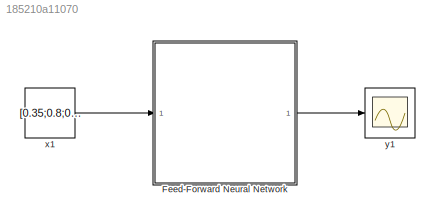
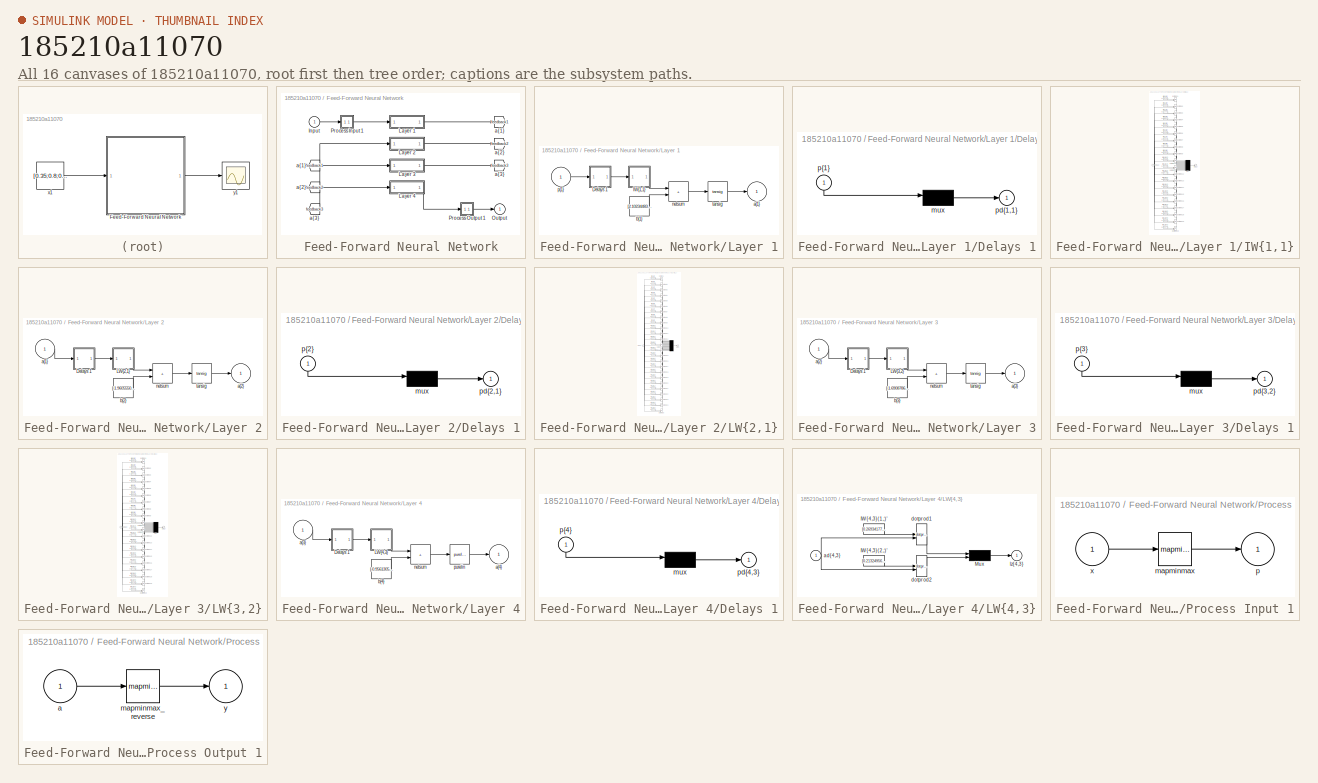
[diagram: thumbnail index - all 16 canvases of the model, root first then tree order]
MODEL slx_185210a11070
KIND model
CONFIG AbsTol = auto
CONFIG EnableMultiTasking = off
CONFIG FixedStep = auto
CONFIG MaxStep = auto
CONFIG MinStep = auto
CONFIG RelTol = 1e-3
CONFIG SampleTimeConstraint = Unconstrained
CONFIG SolverName = VariableStepAuto
CONFIG StartTime = 0.0
CONFIG StopTime = 10.0
BLOCK [SubSystem] Feed-Forward Neural Network
BLOCK [From] Feed-Forward Neural Network/ a{1} 
  GotoTag = feedback1
BLOCK [From] Feed-Forward Neural Network/ a{2} 
  GotoTag = feedback2
BLOCK [From] Feed-Forward Neural Network/ a{3} 
  GotoTag = feedback3
BLOCK [Inport] Feed-Forward Neural Network/Input
  PortDimensions = 8
  SampleTime = 0.1
BLOCK [SubSystem] Feed-Forward Neural Network/Layer 1
BLOCK [SubSystem] Feed-Forward Neural Network/Layer 1/Delays 1
BLOCK [Mux] Feed-Forward Neural Network/Layer 1/Delays 1/mux
  Inputs = 1
BLOCK [Outport] Feed-Forward Neural Network/Layer 1/Delays 1/pd{1,1}
BLOCK [Inport] Feed-Forward Neural Network/Layer 1/Delays 1/p{1}
  NameLocation = left
  PortDimensions = 8
  SampleTime = 0.1
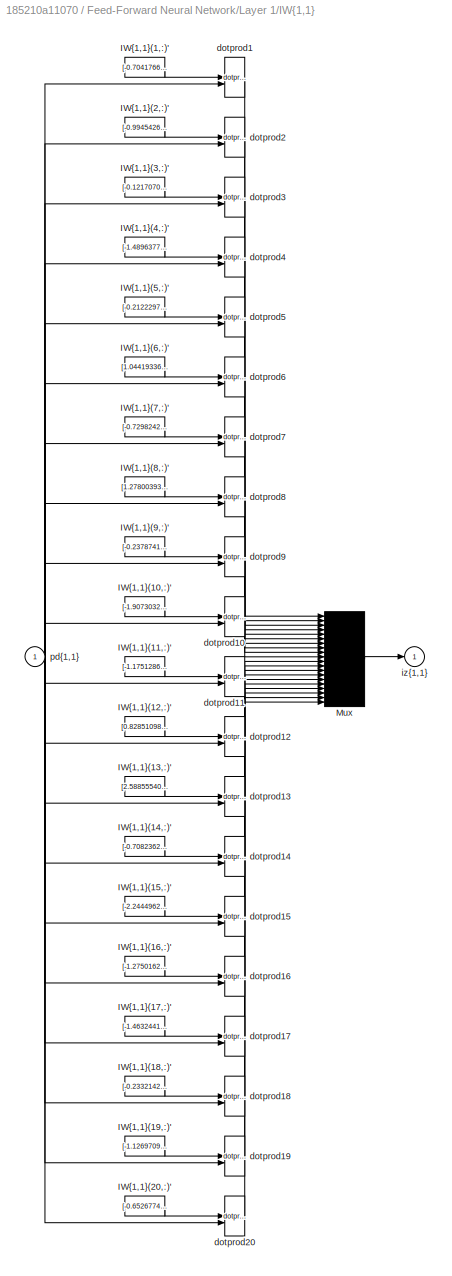
BLOCK [SubSystem] Feed-Forward Neural Network/Layer 1/IW{1,1}
BLOCK [Constant] Feed-Forward Neural Network/Layer 1/IW{1,1}/IW{1,1}(1,:)'
  Value = [-0.70417662314345907947910063739982433617115020751953125;-0.400592560377543815963718998318654485046863555908203125;2.64789397712409968477231814176775515079498291015625;0.5318855929563317541663991505629383027553558349609375;1.6347674836215089211322037954232655465602874755859375;-3.980601995406945814437449371325783431529998779296875;-2.20473490623281609401828973204828798770904541015625;0.7233230103...<+42ch>
BLOCK [Constant] Feed-Forward Neural Network/Layer 1/IW{1,1}/IW{1,1}(10,:)'
  Value = [-1.9073032562964991054599295239313505589962005615234375;1.2573669178362816278848868023487739264965057373046875;0.10020648271966291209533750361515558324754238128662109375;-0.364674385061778905114948656773776747286319732666015625;-0.93267517014159029287156954524107277393341064453125;-3.7010065560317659816291779861785471439361572265625;2.343905095744077016206574626266956329345703125;1.80255693386646...<+39ch>
BLOCK [Constant] Feed-Forward Neural Network/Layer 1/IW{1,1}/IW{1,1}(11,:)'
  Value = [-1.1751286295480267707347366012982092797756195068359375;-1.0975585678164903047360212440253235399723052978515625;0.0825519217903310786876858173854998312890529632568359375;-0.1935371929813855251811816060580895282328128814697265625;0.358930746253374344245656857310677878558635711669921875;-0.34173036017581226442274555665790103375911712646484375;2.569125194524541910823245416395366191864013671875;1.121...<+50ch>
BLOCK [Constant] Feed-Forward Neural Network/Layer 1/IW{1,1}/IW{1,1}(12,:)'
  Value = [0.82851098892112684524136057007126510143280029296875;-3.66211457405566331857471595867536962032318115234375;-0.896648212519931320230170967988669872283935546875;0.361776538558390925448549069187720306217670440673828125;1.0585748794328366795269857902894727885723114013671875;-1.710752851874016045030657551251351833343505859375;-0.81961704823504299977088294326676987111568450927734375;-1.8055892058763183...<+37ch>
BLOCK [Constant] Feed-Forward Neural Network/Layer 1/IW{1,1}/IW{1,1}(13,:)'
  Value = [2.588555401997492566579239792190492153167724609375;-3.02679194736032730617125707794912159442901611328125;1.5068503675112443485062385661876760423183441162109375;-0.1789656495154332283004094961142982356250286102294921875;-0.636274798227713045406517267110757529735565185546875;-1.977675895874144718078468940802849829196929931640625;-3.714524952288218884177695144899189472198486328125;1.0841428619648330...<+37ch>
BLOCK [Constant] Feed-Forward Neural Network/Layer 1/IW{1,1}/IW{1,1}(14,:)'
  Value = [-0.70823624691405695497081751454970799386501312255859375;2.69950027717497054169371040188707411289215087890625;1.986350682119184529739186473307199776172637939453125;-0.6536186954915150781886268305242992937564849853515625;2.900300346671437434764584395452402532100677490234375;0.50259835029922406146596358667011372745037078857421875;1.0140327786543910093541853711940348148345947265625;0.629029394400306...<+39ch>
BLOCK [Constant] Feed-Forward Neural Network/Layer 1/IW{1,1}/IW{1,1}(15,:)'
  Value = [-2.24449626475350072496439679525792598724365234375;-1.673235919247487490935100140632130205631256103515625;-0.1614621656049577691494079090261948294937610626220703125;-0.6181684706779773108564768335781991481781005859375;0.0884456398493711493102864551474340260028839111328125;-1.8174413174340806609308174301986582577228546142578125;0.1570082897571853652873841156178968958556652069091796875;1.1024181196...<+43ch>
BLOCK [Constant] Feed-Forward Neural Network/Layer 1/IW{1,1}/IW{1,1}(16,:)'
  Value = [-1.2750162416094130701793574189650826156139373779296875;-0.6610552329035213059427178450278006494045257568359375;-0.03671336510144239395625476163331768475472927093505859375;1.637302643463957263492147831129841506481170654296875;-1.0345176091109207217044740900746546685695648193359375;-0.12378259353976968359933863439437118358910083770751953125;2.1529547199839367266349654528312385082244873046875;-2.54...<+45ch>
BLOCK [Constant] Feed-Forward Neural Network/Layer 1/IW{1,1}/IW{1,1}(17,:)'
  Value = [-1.46324411514707808379398557008244097232818603515625;0.83026096666313964345107478948193602263927459716796875;1.883622212199245637975764111615717411041259765625;-2.4118910595684166509045098791830241680145263671875;-0.69784193082900014548641820510965771973133087158203125;-1.5772094877306965798879900830797851085662841796875;0.30216930686511001002969578621559776365756988525390625;0.91789820783572118...<+33ch>
BLOCK [Constant] Feed-Forward Neural Network/Layer 1/IW{1,1}/IW{1,1}(18,:)'
  Value = [-0.2332142819457967142238175028978730551898479461669921875;1.03547274384387844037291870336048305034637451171875;0.33152796000555551092503492327523417770862579345703125;-0.206696055556584934453923096953076310455799102783203125;-0.1931382423492973010592521632133866660296916961669921875;-0.11481914827139060031324646615757956169545650482177734375;-0.606669472374809504167103568761376664042472839355468...<+59ch>
BLOCK [Constant] Feed-Forward Neural Network/Layer 1/IW{1,1}/IW{1,1}(19,:)'
  Value = [-1.1269709569439740892704548969049938023090362548828125;0.25345032281588741884803539505810476839542388916015625;-0.58052110184243621571198445963091216981410980224609375;1.4170031927465434051782722235657274723052978515625;-0.06424179025208942572788828329066745936870574951171875;-2.181202949220569120569734877790324389934539794921875;0.45883909299687852811899801963591016829013824462890625;-0.6405822...<+47ch>
BLOCK [Constant] Feed-Forward Neural Network/Layer 1/IW{1,1}/IW{1,1}(2,:)'
  Value = [-0.9945426699220212274354935289011336863040924072265625;0.53089602306257377417608722680597566068172454833984375;0.5898967450874241791325403028167784214019775390625;-0.48604759945282449695724835692089982330799102783203125;1.14588211810704532211957484832964837551116943359375;4.24602808404735743152969007496722042560577392578125;1.2738958115895802070127729166415520012378692626953125;-0.49504484397831...<+41ch>
BLOCK [Constant] Feed-Forward Neural Network/Layer 1/IW{1,1}/IW{1,1}(20,:)'
  Value = [-0.6526774783411866120985678207944147288799285888671875;0.9122176982722296489924929119297303259372711181640625;0.49148022279901126818657530748168937861919403076171875;-0.28123388945164806695942161240964196622371673583984375;-0.487145128316133713131108606830821372568607330322265625;-1.2980336262884673015349790148320607841014862060546875;-0.2586089409351790546764959799475036561489105224609375;-0.49...<+52ch>
BLOCK [Constant] Feed-Forward Neural Network/Layer 1/IW{1,1}/IW{1,1}(3,:)'
  Value = [-0.12170707523398187344110255025952938012778759002685546875;1.831479905313525335941449156962335109710693359375;-0.95931487471136567268814587805536575615406036376953125;-3.0365823574097330350696211098693311214447021484375;-0.2048651259620727083099467336069210432469844818115234375;-0.98529542026367045171042491347179748117923736572265625;0.5700227064763894180288161805947311222553253173828125;-3.5023...<+47ch>
BLOCK [Constant] Feed-Forward Neural Network/Layer 1/IW{1,1}/IW{1,1}(4,:)'
  Value = [-1.4896377273014416164897966154967434704303741455078125;-0.45020095598507448020342280869954265654087066650390625;-0.2299098260296685014569817440133192576467990875244140625;0.0300635979097614892963097332767574698664247989654541015625;0.66286672422069303767244718983420170843601226806640625;0.07361132726357121069948874492183676920831203460693359375;0.6331427759235876973065160200349055230617523193359...<+58ch>
BLOCK [Constant] Feed-Forward Neural Network/Layer 1/IW{1,1}/IW{1,1}(5,:)'
  Value = [-0.2122297688829880846217434964273707009851932525634765625;1.317213725969112569913477273075841367244720458984375;-0.02936188397577109421288099611047073267400264739990234375;-1.3209656842382508923350314944400452077388763427734375;-2.2005707883533407454024199978448450565338134765625;0.335879272627522540428657293887226842343807220458984375;2.03768919501430811891395933344028890132904052734375;-1.3732...<+47ch>
BLOCK [Constant] Feed-Forward Neural Network/Layer 1/IW{1,1}/IW{1,1}(6,:)'
  Value = [1.0441933640506537717129731390741653740406036376953125;-0.6131269450414913446678610853268764913082122802734375;-1.4168964429981187880258630684693343937397003173828125;-1.08875789275675405320953359478153288364410400390625;2.58526202207734012716855431790463626384735107421875;-0.60588639376335151620622809787164442241191864013671875;0.24729422381301535693864934728480875492095947265625;-2.595406532867...<+39ch>
BLOCK [Constant] Feed-Forward Neural Network/Layer 1/IW{1,1}/IW{1,1}(7,:)'
  Value = [-0.729824204428924705467807143577374517917633056640625;-0.3771226257378217372462358980556018650531768798828125;0.6440050089418691836584685006528161466121673583984375;0.39894755479108023887846457000705413520336151123046875;-0.2255830215444223074694463093692320398986339569091796875;-0.36614545781282448189131173421628773212432861328125;-1.009589341820980923358774816733784973621368408203125;-0.542520...<+48ch>
BLOCK [Constant] Feed-Forward Neural Network/Layer 1/IW{1,1}/IW{1,1}(8,:)'
  Value = [1.2780039336474491307171774678863584995269775390625;-3.075110615592829166331512169563211500644683837890625;-0.1347294750827983111918229042203165590763092041015625;-0.850669082562718781304056392400525510311126708984375;3.04227564530242222673450669390149414539337158203125;-2.838878476976181897128981290734373033046722412109375;0.15438069779428109651320255579776130616664886474609375;0.419990141807505...<+40ch>
BLOCK [Constant] Feed-Forward Neural Network/Layer 1/IW{1,1}/IW{1,1}(9,:)'
  Value = [-0.2378741805509317630562549084061174653470516204833984375;-0.478292346408012936098685941033181734383106231689453125;-2.71472903273674948110283366986550390720367431640625;-0.99545982366067542468357487450703047215938568115234375;-3.3799387094502453265931762871332466602325439453125;0.441800544960188334986384006697335280478000640869140625;-0.09664755051245033090623337557190097868442535400390625;-2.2...<+51ch>
BLOCK [Mux] Feed-Forward Neural Network/Layer 1/IW{1,1}/Mux
  Inputs = 20
BLOCK [Reference] Feed-Forward Neural Network/Layer 1/IW{1,1}/dotprod1  REF=neural/Weight Functions/dotprod
  SourceBlock = neural/Weight Functions/dotprod
  SourceType = DOTPROD
BLOCK [Reference] Feed-Forward Neural Network/Layer 1/IW{1,1}/dotprod10  REF=neural/Weight Functions/dotprod
  SourceBlock = neural/Weight Functions/dotprod
  SourceType = DOTPROD
BLOCK [Reference] Feed-Forward Neural Network/Layer 1/IW{1,1}/dotprod11  REF=neural/Weight Functions/dotprod
  SourceBlock = neural/Weight Functions/dotprod
  SourceType = DOTPROD
BLOCK [Reference] Feed-Forward Neural Network/Layer 1/IW{1,1}/dotprod12  REF=neural/Weight Functions/dotprod
  SourceBlock = neural/Weight Functions/dotprod
  SourceType = DOTPROD
BLOCK [Reference] Feed-Forward Neural Network/Layer 1/IW{1,1}/dotprod13  REF=neural/Weight Functions/dotprod
  SourceBlock = neural/Weight Functions/dotprod
  SourceType = DOTPROD
BLOCK [Reference] Feed-Forward Neural Network/Layer 1/IW{1,1}/dotprod14  REF=neural/Weight Functions/dotprod
  SourceBlock = neural/Weight Functions/dotprod
  SourceType = DOTPROD
BLOCK [Reference] Feed-Forward Neural Network/Layer 1/IW{1,1}/dotprod15  REF=neural/Weight Functions/dotprod
  SourceBlock = neural/Weight Functions/dotprod
  SourceType = DOTPROD
BLOCK [Reference] Feed-Forward Neural Network/Layer 1/IW{1,1}/dotprod16  REF=neural/Weight Functions/dotprod
  SourceBlock = neural/Weight Functions/dotprod
  SourceType = DOTPROD
BLOCK [Reference] Feed-Forward Neural Network/Layer 1/IW{1,1}/dotprod17  REF=neural/Weight Functions/dotprod
  SourceBlock = neural/Weight Functions/dotprod
  SourceType = DOTPROD
BLOCK [Reference] Feed-Forward Neural Network/Layer 1/IW{1,1}/dotprod18  REF=neural/Weight Functions/dotprod
  SourceBlock = neural/Weight Functions/dotprod
  SourceType = DOTPROD
BLOCK [Reference] Feed-Forward Neural Network/Layer 1/IW{1,1}/dotprod19  REF=neural/Weight Functions/dotprod
  SourceBlock = neural/Weight Functions/dotprod
  SourceType = DOTPROD
BLOCK [Reference] Feed-Forward Neural Network/Layer 1/IW{1,1}/dotprod2  REF=neural/Weight Functions/dotprod
  SourceBlock = neural/Weight Functions/dotprod
  SourceType = DOTPROD
BLOCK [Reference] Feed-Forward Neural Network/Layer 1/IW{1,1}/dotprod20  REF=neural/Weight Functions/dotprod
  SourceBlock = neural/Weight Functions/dotprod
  SourceType = DOTPROD
BLOCK [Reference] Feed-Forward Neural Network/Layer 1/IW{1,1}/dotprod3  REF=neural/Weight Functions/dotprod
  SourceBlock = neural/Weight Functions/dotprod
  SourceType = DOTPROD
BLOCK [Reference] Feed-Forward Neural Network/Layer 1/IW{1,1}/dotprod4  REF=neural/Weight Functions/dotprod
  SourceBlock = neural/Weight Functions/dotprod
  SourceType = DOTPROD
BLOCK [Reference] Feed-Forward Neural Network/Layer 1/IW{1,1}/dotprod5  REF=neural/Weight Functions/dotprod
  SourceBlock = neural/Weight Functions/dotprod
  SourceType = DOTPROD
BLOCK [Reference] Feed-Forward Neural Network/Layer 1/IW{1,1}/dotprod6  REF=neural/Weight Functions/dotprod
  SourceBlock = neural/Weight Functions/dotprod
  SourceType = DOTPROD
BLOCK [Reference] Feed-Forward Neural Network/Layer 1/IW{1,1}/dotprod7  REF=neural/Weight Functions/dotprod
  SourceBlock = neural/Weight Functions/dotprod
  SourceType = DOTPROD
BLOCK [Reference] Feed-Forward Neural Network/Layer 1/IW{1,1}/dotprod8  REF=neural/Weight Functions/dotprod
  SourceBlock = neural/Weight Functions/dotprod
  SourceType = DOTPROD
BLOCK [Reference] Feed-Forward Neural Network/Layer 1/IW{1,1}/dotprod9  REF=neural/Weight Functions/dotprod
  SourceBlock = neural/Weight Functions/dotprod
  SourceType = DOTPROD
BLOCK [Outport] Feed-Forward Neural Network/Layer 1/IW{1,1}/iz{1,1}
BLOCK [Inport] Feed-Forward Neural Network/Layer 1/IW{1,1}/pd{1,1}
  PortDimensions = 8
  SampleTime = 0.1
BLOCK [Outport] Feed-Forward Neural Network/Layer 1/a{1}
  InitialOutput = [0;0;0;0;0;0;0;0;0;0;0;0;0;0;0;0;0;0;0;0]
BLOCK [Constant] Feed-Forward Neural Network/Layer 1/b{1}
  Value = [2.10234483754678525002645983477123081684112548828125;1.828527898203990531555973575450479984283447265625;-1.5335510576575825947287512462935410439968109130859375;3.54145487753245458151241109590046107769012451171875;0.013997617443385075575168485784161021001636981964111328125;0.98759574161312324580563881681882776319980621337890625;-0.50471138926611891495355166625813581049442291259765625;-0.4250026085...<+702ch>
BLOCK [Sum] Feed-Forward Neural Network/Layer 1/netsum
  IconShape = rectangular
  InputSameDT = on
  Inputs = 2
  OutDataTypeStr = Inherit: Same as first input
  SaturateOnIntegerOverflow = on
BLOCK [Inport] Feed-Forward Neural Network/Layer 1/p{1}
  PortDimensions = 8
  SampleTime = 0.1
BLOCK [Reference] Feed-Forward Neural Network/Layer 1/tansig  REF=neural/Transfer Functions/tansig
  SourceBlock = neural/Transfer Functions/tansig
  SourceType = TANSIG
BLOCK [SubSystem] Feed-Forward Neural Network/Layer 2
BLOCK [SubSystem] Feed-Forward Neural Network/Layer 2/Delays 1
BLOCK [Mux] Feed-Forward Neural Network/Layer 2/Delays 1/mux
  Inputs = 1
BLOCK [Outport] Feed-Forward Neural Network/Layer 2/Delays 1/pd{2,1}
BLOCK [Inport] Feed-Forward Neural Network/Layer 2/Delays 1/p{2}
  NameLocation = left
  PortDimensions = 20
  SampleTime = 0.1
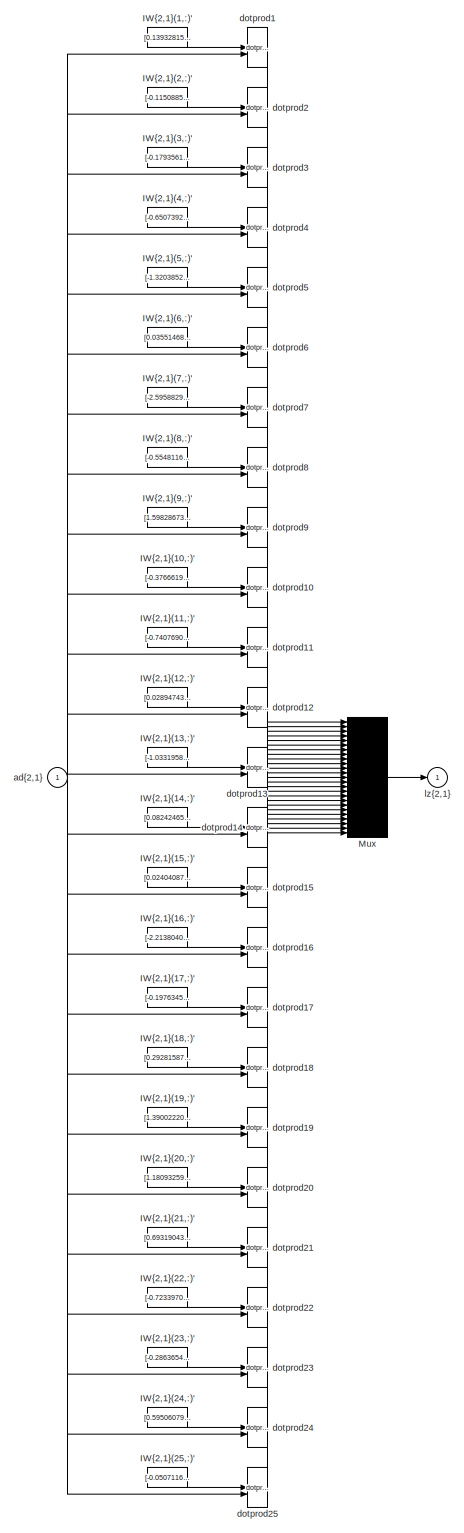
[diagram: Feed-Forward Neural Network/Layer 2/LW{2,1} - part 1/1, most of the canvas]
BLOCK [SubSystem] Feed-Forward Neural Network/Layer 2/LW{2,1}
BLOCK [Constant] Feed-Forward Neural Network/Layer 2/LW{2,1}/IW{2,1}(1,:)'
  Value = [0.139328151816806966589723515426157973706722259521484375;0.44680836337712925843135280956630595028400421142578125;-1.4144097410402591830091978408745490014553070068359375;-0.259197061387242133623232120953616686165332794189453125;-0.319351879166663799036740556402946822345256805419921875;0.596891546020010377304743087734095752239227294921875;-0.7175550275159654489698368706740438938140869140625;1.64024...<+719ch>
BLOCK [Constant] Feed-Forward Neural Network/Layer 2/LW{2,1}/IW{2,1}(10,:)'
  Value = [-0.3766619071934156348646638434729538857936859130859375;0.15734140851860856091803952949703671038150787353515625;2.621910448735774057382741375477053225040435791015625;-0.099414623900151488644638675395981408655643463134765625;0.5594550973783951608453435255796648561954498291015625;-0.301837324322603739457093752207583747804164886474609375;-1.4562242900032364989471034277812577784061431884765625;0.6519...<+714ch>
BLOCK [Constant] Feed-Forward Neural Network/Layer 2/LW{2,1}/IW{2,1}(11,:)'
  Value = [-0.7407690503396968662030985797173343598842620849609375;1.1244794249943039776695741238654591143131256103515625;-2.178972215149566959979665625724010169506072998046875;-0.411603095383909600712968313018791377544403076171875;1.2597652871360665027822278716485016047954559326171875;1.48889299351443415986295804032124578952789306640625;1.0291548439527316016750546623370610177516937255859375;0.7146135907986...<+711ch>
BLOCK [Constant] Feed-Forward Neural Network/Layer 2/LW{2,1}/IW{2,1}(12,:)'
  Value = [0.02894743910835161082584221503566368483006954193115234375;-1.4638006801372187570819960455992259085178375244140625;-0.283560954144263355214405919468845240771770477294921875;0.59435507738199222504960061996825970709323883056640625;0.63364881090096591975679984898306429386138916015625;-1.130811819882592050845460107666440308094024658203125;0.08829424409448571875458355862065218389034271240234375;0.8489...<+717ch>
BLOCK [Constant] Feed-Forward Neural Network/Layer 2/LW{2,1}/IW{2,1}(13,:)'
  Value = [-1.033195878461410810444931485108099877834320068359375;-0.2003280882613997226915358851329074241220951080322265625;0.41120794126118720424045704930904321372509002685546875;0.810697831258643031304700343753211200237274169921875;0.87145039772341592598792203716584481298923492431640625;1.229107183105584422122547039180062711238861083984375;-0.64728491905853358101552430525771342217922210693359375;1.307361...<+721ch>
BLOCK [Constant] Feed-Forward Neural Network/Layer 2/LW{2,1}/IW{2,1}(14,:)'
  Value = [0.08242465786981774400477007702647824771702289581298828125;-0.348284060540416273710206951363943517208099365234375;1.481102429686995236579605261795222759246826171875;-0.23192641548591430566972348970011807978153228759765625;-0.8625882835542260096417521708644926548004150390625;-0.1511583570743630089427966822768212296068668365478515625;0.3436297335081011095070380179095081984996795654296875;0.18244922...<+732ch>
BLOCK [Constant] Feed-Forward Neural Network/Layer 2/LW{2,1}/IW{2,1}(15,:)'
  Value = [0.0240408728052049387724498075158408028073608875274658203125;0.233186057287580184027575569416512735188007354736328125;-1.3717864856982238119798012121464125812053680419921875;0.959990753552517173119440485606901347637176513671875;0.393515349745053699681562875412055291235446929931640625;2.367799120042099136895785704837180674076080322265625;0.1179778131645995153942152455783798359334468841552734375;-2...<+728ch>
BLOCK [Constant] Feed-Forward Neural Network/Layer 2/LW{2,1}/IW{2,1}(16,:)'
  Value = [-2.213804016106452277057314859121106564998626708984375;-0.1710163481677684227388880344733479432761669158935546875;-0.71446144555219970317949673699331469833850860595703125;0.67986331050535098174947279403568245470523834228515625;-2.357418607593249060272455608355812728404998779296875;0.059669580013924895800503378495704964734613895416259765625;1.13440005982216884916624621837399899959564208984375;-1.2...<+725ch>
BLOCK [Constant] Feed-Forward Neural Network/Layer 2/LW{2,1}/IW{2,1}(17,:)'
  Value = [-0.1976345765247123076324697876771097071468830108642578125;-0.11314112324914703255895886968573904596269130706787109375;0.36019653043522958935085398479714058339595794677734375;1.01853678067340069901547394692897796630859375;1.0623364419248326750988553612842224538326263427734375;0.08912374865318850591933141913614235818386077880859375;0.74389174362739896029239616837003268301486968994140625;1.70179983...<+711ch>
BLOCK [Constant] Feed-Forward Neural Network/Layer 2/LW{2,1}/IW{2,1}(18,:)'
  Value = [0.2928158796552116083233840981847606599330902099609375;-0.81975611062236719561724385130219161510467529296875;0.5324469145005472636711374434526078402996063232421875;0.15450526535358510837880885446793399751186370849609375;0.296931392460336451843971872222027741372585296630859375;0.0655691343345357890992630700566223822534084320068359375;-0.56831794112471689661703067031339742243289947509765625;1.05229...<+726ch>
BLOCK [Constant] Feed-Forward Neural Network/Layer 2/LW{2,1}/IW{2,1}(19,:)'
  Value = [1.3900222061703664255816192962811328470706939697265625;0.0279280912447238439944019461336210952140390872955322265625;-0.1618848585795560068856246971336076967418193817138671875;0.82624885213294374519676921408972702920436859130859375;-0.5525839084768560116600610854220576584339141845703125;0.059225252871710758195700208261769148521125316619873046875;0.08124059046328284405813491275694104842841625213623...<+732ch>
BLOCK [Constant] Feed-Forward Neural Network/Layer 2/LW{2,1}/IW{2,1}(2,:)'
  Value = [-0.11508852541151086412707371664509992115199565887451171875;1.4237075458784207437901159210014156997203826904296875;-0.8000167090945728975981410258100368082523345947265625;0.1709903579986175314875396225033910013735294342041015625;0.0359473132155945507282268636117805726826190948486328125;-0.9255790433066988232013727611047215759754180908203125;-1.2524419972138556289564803591929376125335693359375;-3....<+726ch>
BLOCK [Constant] Feed-Forward Neural Network/Layer 2/LW{2,1}/IW{2,1}(20,:)'
  Value = [1.1809325951429838763573343385360203683376312255859375;0.1662090250652506762119031691327109001576900482177734375;-2.3675392807790895943753639585338532924652099609375;0.94424848870468303108083318875287659466266632080078125;0.09456016971334325893483452318832860328257083892822265625;-1.9442854451889777234185885390616022050380706787109375;0.380198639832476981137432403556886129081249237060546875;-0.83...<+718ch>
BLOCK [Constant] Feed-Forward Neural Network/Layer 2/LW{2,1}/IW{2,1}(21,:)'
  Value = [0.693190435933318749306408790289424359798431396484375;0.59564883415106117947601660489453934133052825927734375;0.1745648707863239612603223349651671014726161956787109375;0.55632005187991240280354077185620553791522979736328125;0.479760621147911958672693799599073827266693115234375;-0.172830693211262931274774246048764325678348541259765625;-0.027893592338303511979358262351524899713695049285888671875;0....<+743ch>
BLOCK [Constant] Feed-Forward Neural Network/Layer 2/LW{2,1}/IW{2,1}(22,:)'
  Value = [-0.72339708336003971655969735365943051874637603759765625;-1.488727267215799177080270965234376490116119384765625;0.87199030282276501768734533470706082880496978759765625;-0.6481736549567873595378841855563223361968994140625;-1.02960959733564738627364931744523346424102783203125;-0.90562282957225825885672065851395018398761749267578125;-1.3361216364463104344650901111890561878681182861328125;0.289375316...<+723ch>
BLOCK [Constant] Feed-Forward Neural Network/Layer 2/LW{2,1}/IW{2,1}(23,:)'
  Value = [-0.286365454854977052878695076287840493023395538330078125;-0.321205712271815768676930247238487936556339263916015625;0.1965372036904608765706115036664414219558238983154296875;-0.164392001917640639963025250835926271975040435791015625;-0.490402198987874904378969631579820998013019561767578125;-0.9630301264653053916475755613646470010280609130859375;0.122902528088661325278430069829482818022370338439941...<+736ch>
BLOCK [Constant] Feed-Forward Neural Network/Layer 2/LW{2,1}/IW{2,1}(24,:)'
  Value = [0.59506079873321215956138985347934067249298095703125;0.89712526548943305471084386226721107959747314453125;-3.16399911609334960616024545743130147457122802734375;0.81960981225636364566611291593289934098720550537109375;0.67937282475507176915385798565694130957126617431640625;0.6080723768162232811818057598429732024669647216796875;-0.2250071966423117242328544307383708655834197998046875;-0.8619438350527...<+718ch>
BLOCK [Constant] Feed-Forward Neural Network/Layer 2/LW{2,1}/IW{2,1}(25,:)'
  Value = [-0.05071169277204072567410975125312688760459423065185546875;-1.29960905758880063132210125331766903400421142578125;0.52342585257404661280844493376207537949085235595703125;0.2299599160743967807274401593531365506350994110107421875;-1.2850461159501678221062093143700622022151947021484375;1.205193027319205523184564299299381673336029052734375;-0.8497743224194385103231752509600482881069183349609375;0.508...<+724ch>
BLOCK [Constant] Feed-Forward Neural Network/Layer 2/LW{2,1}/IW{2,1}(3,:)'
  Value = [-0.1793561655204516103179201991224545054137706756591796875;0.8909282460236147560550534763024188578128814697265625;1.584747835184245889905696458299644291400909423828125;0.07955593179910062928694713946242700330913066864013671875;-1.4863039753596931635826194906258024275302886962890625;-1.65044606863447551603485408122651278972625732421875;-0.68231029445866508975626629762700758874416351318359375;0.770...<+719ch>
BLOCK [Constant] Feed-Forward Neural Network/Layer 2/LW{2,1}/IW{2,1}(4,:)'
  Value = [-0.65073923709036141094230742965009994804859161376953125;0.255071480042014575584374824757105670869350433349609375;2.97397072716003041392696104594506323337554931640625;0.486451836885784472119809151990921236574649810791015625;-0.9196645418283788675495316056185401976108551025390625;0.39504298704173168577113983701565302908420562744140625;-1.51590380978054550809019929147325456142425537109375;0.0537456...<+728ch>
BLOCK [Constant] Feed-Forward Neural Network/Layer 2/LW{2,1}/IW{2,1}(5,:)'
  Value = [-1.320385217813471623315990655100904405117034912109375;-0.324701972808236316581087521626614034175872802734375;-2.344011870911540285078444867394864559173583984375;-0.04378392530520798520132785824898746795952320098876953125;0.802552663788130615785121335648000240325927734375;0.361452191322712612642220619818544946610927581787109375;1.0515113020981508018536487725214101374149322509765625;1.355278123308...<+695ch>
BLOCK [Constant] Feed-Forward Neural Network/Layer 2/LW{2,1}/IW{2,1}(6,:)'
  Value = [0.0355146833145486284788461261996417306363582611083984375;-1.45456490639258984032267107977531850337982177734375;-1.7188834457194019922354755181004293262958526611328125;-1.5764664342424168363976377804647199809551239013671875;-1.2747197375886967218860945649794302880764007568359375;1.766525055149629874762240433483384549617767333984375;1.432466157865490696821098026703111827373504638671875;-3.79826838...<+704ch>
BLOCK [Constant] Feed-Forward Neural Network/Layer 2/LW{2,1}/IW{2,1}(7,:)'
  Value = [-2.595882947085141889687065486214123666286468505859375;-0.81652656675440449252079133657389320433139801025390625;-0.4847171955124356390598450161633081734180450439453125;-1.64337545474434865155899387900717556476593017578125;-1.2596050180610911528589213048689998686313629150390625;-0.05533194433175907256394765454388107173144817352294921875;0.636000851311413040178877054131589829921722412109375;2.66306...<+718ch>
BLOCK [Constant] Feed-Forward Neural Network/Layer 2/LW{2,1}/IW{2,1}(8,:)'
  Value = [-0.554811601190135395000879725557751953601837158203125;0.3209755793525339573335486420546658337116241455078125;-0.74070020252372137381513539367006160318851470947265625;0.70806825488200519913561947760172188282012939453125;0.24437293546122351717286846906063146889209747314453125;0.081940995227564539238329643922043032944202423095703125;1.28774915590885630223283442319370806217193603515625;0.31242607087...<+693ch>
BLOCK [Constant] Feed-Forward Neural Network/Layer 2/LW{2,1}/IW{2,1}(9,:)'
  Value = [1.5982867354744840771019198655267246067523956298828125;1.14740427872372929840594224515371024608612060546875;0.301143812172979197239186532897292636334896087646484375;-0.7817029102038992594003730118856765329837799072265625;0.2202479576535239791379439111551619134843349456787109375;0.1566960623727684243089441906704450957477092742919921875;0.71067672562008310510606179377646185457706451416015625;0.4673...<+723ch>
BLOCK [Mux] Feed-Forward Neural Network/Layer 2/LW{2,1}/Mux
  Inputs = 25
BLOCK [Inport] Feed-Forward Neural Network/Layer 2/LW{2,1}/ad{2,1}
  PortDimensions = 20
  SampleTime = 0.1
BLOCK [Reference] Feed-Forward Neural Network/Layer 2/LW{2,1}/dotprod1  REF=neural/Weight Functions/dotprod
  SourceBlock = neural/Weight Functions/dotprod
  SourceType = DOTPROD
BLOCK [Reference] Feed-Forward Neural Network/Layer 2/LW{2,1}/dotprod10  REF=neural/Weight Functions/dotprod
  SourceBlock = neural/Weight Functions/dotprod
  SourceType = DOTPROD
BLOCK [Reference] Feed-Forward Neural Network/Layer 2/LW{2,1}/dotprod11  REF=neural/Weight Functions/dotprod
  SourceBlock = neural/Weight Functions/dotprod
  SourceType = DOTPROD
BLOCK [Reference] Feed-Forward Neural Network/Layer 2/LW{2,1}/dotprod12  REF=neural/Weight Functions/dotprod
  SourceBlock = neural/Weight Functions/dotprod
  SourceType = DOTPROD
BLOCK [Reference] Feed-Forward Neural Network/Layer 2/LW{2,1}/dotprod13  REF=neural/Weight Functions/dotprod
  SourceBlock = neural/Weight Functions/dotprod
  SourceType = DOTPROD
BLOCK [Reference] Feed-Forward Neural Network/Layer 2/LW{2,1}/dotprod14  REF=neural/Weight Functions/dotprod
  SourceBlock = neural/Weight Functions/dotprod
  SourceType = DOTPROD
BLOCK [Reference] Feed-Forward Neural Network/Layer 2/LW{2,1}/dotprod15  REF=neural/Weight Functions/dotprod
  SourceBlock = neural/Weight Functions/dotprod
  SourceType = DOTPROD
BLOCK [Reference] Feed-Forward Neural Network/Layer 2/LW{2,1}/dotprod16  REF=neural/Weight Functions/dotprod
  SourceBlock = neural/Weight Functions/dotprod
  SourceType = DOTPROD
BLOCK [Reference] Feed-Forward Neural Network/Layer 2/LW{2,1}/dotprod17  REF=neural/Weight Functions/dotprod
  SourceBlock = neural/Weight Functions/dotprod
  SourceType = DOTPROD
BLOCK [Reference] Feed-Forward Neural Network/Layer 2/LW{2,1}/dotprod18  REF=neural/Weight Functions/dotprod
  SourceBlock = neural/Weight Functions/dotprod
  SourceType = DOTPROD
BLOCK [Reference] Feed-Forward Neural Network/Layer 2/LW{2,1}/dotprod19  REF=neural/Weight Functions/dotprod
  SourceBlock = neural/Weight Functions/dotprod
  SourceType = DOTPROD
BLOCK [Reference] Feed-Forward Neural Network/Layer 2/LW{2,1}/dotprod2  REF=neural/Weight Functions/dotprod
  SourceBlock = neural/Weight Functions/dotprod
  SourceType = DOTPROD
BLOCK [Reference] Feed-Forward Neural Network/Layer 2/LW{2,1}/dotprod20  REF=neural/Weight Functions/dotprod
  SourceBlock = neural/Weight Functions/dotprod
  SourceType = DOTPROD
BLOCK [Reference] Feed-Forward Neural Network/Layer 2/LW{2,1}/dotprod21  REF=neural/Weight Functions/dotprod
  SourceBlock = neural/Weight Functions/dotprod
  SourceType = DOTPROD
BLOCK [Reference] Feed-Forward Neural Network/Layer 2/LW{2,1}/dotprod22  REF=neural/Weight Functions/dotprod
  SourceBlock = neural/Weight Functions/dotprod
  SourceType = DOTPROD
BLOCK [Reference] Feed-Forward Neural Network/Layer 2/LW{2,1}/dotprod23  REF=neural/Weight Functions/dotprod
  SourceBlock = neural/Weight Functions/dotprod
  SourceType = DOTPROD
BLOCK [Reference] Feed-Forward Neural Network/Layer 2/LW{2,1}/dotprod24  REF=neural/Weight Functions/dotprod
  SourceBlock = neural/Weight Functions/dotprod
  SourceType = DOTPROD
BLOCK [Reference] Feed-Forward Neural Network/Layer 2/LW{2,1}/dotprod25  REF=neural/Weight Functions/dotprod
  SourceBlock = neural/Weight Functions/dotprod
  SourceType = DOTPROD
BLOCK [Reference] Feed-Forward Neural Network/Layer 2/LW{2,1}/dotprod3  REF=neural/Weight Functions/dotprod
  SourceBlock = neural/Weight Functions/dotprod
  SourceType = DOTPROD
BLOCK [Reference] Feed-Forward Neural Network/Layer 2/LW{2,1}/dotprod4  REF=neural/Weight Functions/dotprod
  SourceBlock = neural/Weight Functions/dotprod
  SourceType = DOTPROD
BLOCK [Reference] Feed-Forward Neural Network/Layer 2/LW{2,1}/dotprod5  REF=neural/Weight Functions/dotprod
  SourceBlock = neural/Weight Functions/dotprod
  SourceType = DOTPROD
BLOCK [Reference] Feed-Forward Neural Network/Layer 2/LW{2,1}/dotprod6  REF=neural/Weight Functions/dotprod
  SourceBlock = neural/Weight Functions/dotprod
  SourceType = DOTPROD
BLOCK [Reference] Feed-Forward Neural Network/Layer 2/LW{2,1}/dotprod7  REF=neural/Weight Functions/dotprod
  SourceBlock = neural/Weight Functions/dotprod
  SourceType = DOTPROD
BLOCK [Reference] Feed-Forward Neural Network/Layer 2/LW{2,1}/dotprod8  REF=neural/Weight Functions/dotprod
  SourceBlock = neural/Weight Functions/dotprod
  SourceType = DOTPROD
BLOCK [Reference] Feed-Forward Neural Network/Layer 2/LW{2,1}/dotprod9  REF=neural/Weight Functions/dotprod
  SourceBlock = neural/Weight Functions/dotprod
  SourceType = DOTPROD
BLOCK [Outport] Feed-Forward Neural Network/Layer 2/LW{2,1}/lz{2,1}
BLOCK [Inport] Feed-Forward Neural Network/Layer 2/a{1} 
  PortDimensions = 20
  SampleTime = 0.1
BLOCK [Outport] Feed-Forward Neural Network/Layer 2/a{2}
  InitialOutput = [0;0;0;0;0;0;0;0;0;0;0;0;0;0;0;0;0;0;0;0;0;0;0;0;0]
BLOCK [Constant] Feed-Forward Neural Network/Layer 2/b{2}
  Value = [-1.9605550676979419666423609669436700642108917236328125;1.8105898055677627223047920779208652675151824951171875;1.3597544406996335819570731473504565656185150146484375;1.5793747465806438068369743632501922547817230224609375;1.311290097707080715139227322652004659175872802734375;-2.21711180396582374640956913935951888561248779296875;-0.193489507400116611535167976398952305316925048828125;-0.151461106972...<+982ch>
BLOCK [Sum] Feed-Forward Neural Network/Layer 2/netsum
  IconShape = rectangular
  InputSameDT = on
  Inputs = 2
  OutDataTypeStr = Inherit: Same as first input
  SaturateOnIntegerOverflow = on
BLOCK [Reference] Feed-Forward Neural Network/Layer 2/tansig  REF=neural/Transfer Functions/tansig
  SourceBlock = neural/Transfer Functions/tansig
  SourceType = TANSIG
BLOCK [SubSystem] Feed-Forward Neural Network/Layer 3
BLOCK [SubSystem] Feed-Forward Neural Network/Layer 3/Delays 1
BLOCK [Mux] Feed-Forward Neural Network/Layer 3/Delays 1/mux
  Inputs = 1
BLOCK [Outport] Feed-Forward Neural Network/Layer 3/Delays 1/pd{3,2}
BLOCK [Inport] Feed-Forward Neural Network/Layer 3/Delays 1/p{3}
  NameLocation = left
  PortDimensions = 25
  SampleTime = 0.1
BLOCK [SubSystem] Feed-Forward Neural Network/Layer 3/LW{3,2}
BLOCK [Constant] Feed-Forward Neural Network/Layer 3/LW{3,2}/IW{3,2}(1,:)'
  Value = [-0.39155101026818328602274732475052587687969207763671875;1.7558465872701136678557531922706402838230133056640625;1.6304552347747829355029125508735887706279754638671875;0.85709459564056877933779787781531922519207000732421875;-1.138562598831335481719406743650324642658233642578125;0.489727788594286950196732277618139050900936126708984375;1.1063131091037596842596713031525723636150360107421875;0.8660554...<+998ch>
BLOCK [Constant] Feed-Forward Neural Network/Layer 3/LW{3,2}/IW{3,2}(10,:)'
  Value = [-0.08361725244568930792699035237092175520956516265869140625;-0.038802556945083978290345072537093074060976505279541015625;2.11873977687409809078644684632308781147003173828125;0.38726690225200233186342302360571920871734619140625;-3.3740083559417772818278535851277410984039306640625;0.465665747271078844793379403199651278555393218994140625;-1.3607974026987006421762771424255333840847015380859375;-1.170...<+1017ch>
BLOCK [Constant] Feed-Forward Neural Network/Layer 3/LW{3,2}/IW{3,2}(11,:)'
  Value = [0.74711944802672769494478188789798878133296966552734375;0.75147624231995191479427376179955899715423583984375;-0.678960770700322679971350225969217717647552490234375;-0.31242291839480651471916416994645260274410247802734375;-3.6732445412559879827085751458071172237396240234375;0.63310080313150873809746599363279528915882110595703125;-0.132544571974816782766737333076889626681804656982421875;-0.29771156...<+999ch>
BLOCK [Constant] Feed-Forward Neural Network/Layer 3/LW{3,2}/IW{3,2}(12,:)'
  Value = [0.62733015716273443640460527603863738477230072021484375;0.98158488888199146860102928258129395544528961181640625;1.6246307429239814634769345502718351781368255615234375;-0.52570795787513924235412332564010284841060638427734375;1.5946913632299322127749974242760799825191497802734375;0.65661359657085183183511389870545826852321624755859375;-2.290355724143165350170647798222489655017852783203125;2.1038950...<+999ch>
BLOCK [Constant] Feed-Forward Neural Network/Layer 3/LW{3,2}/IW{3,2}(13,:)'
  Value = [0.47654578691012883240318842581473290920257568359375;2.10545070014039037431530232424847781658172607421875;-2.702944431508209621739524664008058607578277587890625;-0.62139957280205482259560767488437704741954803466796875;0.44633183820491495463755882155965082347393035888671875;-0.54515744312160874240902330711833201348781585693359375;-1.9658980413248381413637844161712564527988433837890625;-0.462029589...<+993ch>
BLOCK [Constant] Feed-Forward Neural Network/Layer 3/LW{3,2}/IW{3,2}(14,:)'
  Value = [-0.89178465459668576631457881376263685524463653564453125;1.633320937513262460782925700186751782894134521484375;-0.84164235851180013714412098124739713966846466064453125;1.2180632869554035568882000006851740181446075439453125;1.4592783529736490510941848697257228195667266845703125;0.07278880772307101676421581260001403279602527618408203125;-0.87004447635487591750091951325885020196437835693359375;-0.01...<+1021ch>
BLOCK [Constant] Feed-Forward Neural Network/Layer 3/LW{3,2}/IW{3,2}(15,:)'
  Value = [-1.3435219809019447456677198715624399483203887939453125;-0.81293606883501456916718552747624926269054412841796875;0.67188276999959561930353402203763835132122039794921875;1.3900890287766050068540835127350874245166778564453125;1.1715648418797035557048502596444450318813323974609375;0.381482582163064243285788279536063782870769500732421875;0.77500472714319812439498491585254669189453125;-0.8323531035793...<+1004ch>
BLOCK [Constant] Feed-Forward Neural Network/Layer 3/LW{3,2}/IW{3,2}(16,:)'
  Value = [0.90005971120979666455497181232203729450702667236328125;-2.304033089130424372115157893858850002288818359375;-0.1933616604315820108883627881368738599121570587158203125;0.300681951083410614611324263023561798036098480224609375;2.948962380186391118996880322811193764209747314453125;-0.72698622395244660854274343364522792398929595947265625;0.334014140535880132976132017574855126440525054931640625;1.38257...<+990ch>
BLOCK [Constant] Feed-Forward Neural Network/Layer 3/LW{3,2}/IW{3,2}(17,:)'
  Value = [1.3547358327931366961394132886198349297046661376953125;0.14599223721911880335966316124540753662586212158203125;-0.1498544287663340079941320936995907686650753021240234375;0.493213849779373714188324129281681962311267852783203125;-0.5238608026251105886927916799322701990604400634765625;0.6586253390899299287042367723188363015651702880859375;-0.73241770106253556438247187543311156332492828369140625;0.21...<+1005ch>
BLOCK [Constant] Feed-Forward Neural Network/Layer 3/LW{3,2}/IW{3,2}(18,:)'
  Value = [-0.64139896965391007821466473615146242082118988037109375;-0.18209555113507980284026643857941962778568267822265625;0.85072685342104381600591977985459379851818084716796875;3.104091604979887453197306967922486364841461181640625;1.1226738279063213088448947019060142338275909423828125;-1.2211736672265420811100966602680273354053497314453125;0.1298391815169158414189354289192124269902706146240234375;1.0695...<+1010ch>
BLOCK [Constant] Feed-Forward Neural Network/Layer 3/LW{3,2}/IW{3,2}(19,:)'
  Value = [-0.98474040958938602319250321670551784336566925048828125;-0.5067514795729699539350576742435805499553680419921875;-1.82373092966917038637575387838296592235565185546875;3.75196178307217653724592310027219355106353759765625;-0.4247594864462385100267738380352966487407684326171875;-0.49384718873254807025574564249836839735507965087890625;-0.74956446963971945507410055142827332019805908203125;-0.563665370...<+982ch>
BLOCK [Constant] Feed-Forward Neural Network/Layer 3/LW{3,2}/IW{3,2}(2,:)'
  Value = [-0.486528855359111001011029884466552175581455230712890625;-1.6217965970162253608322089348803274333477020263671875;0.2264376064811576549917759848540299572050571441650390625;0.287923314675123942496526296963565982878208160400390625;1.3393915073496376333395119218039326369762420654296875;-0.7364010931427749095945500812376849353313446044921875;-0.25846131337841615760453350958414375782012939453125;-0.05...<+1002ch>
BLOCK [Constant] Feed-Forward Neural Network/Layer 3/LW{3,2}/IW{3,2}(20,:)'
  Value = [-0.0790260366180013107406665540111134760081768035888671875;0.95590419330804798914158482148195616900920867919921875;-0.275983820242192756655441598923061974346637725830078125;0.52269336845813996195175832326640374958515167236328125;2.096951379143884519606899630161933600902557373046875;-0.66545329909242767474353286161203868687152862548828125;1.7000392238666390820611695744446478784084320068359375;-1.5...<+991ch>
BLOCK [Constant] Feed-Forward Neural Network/Layer 3/LW{3,2}/IW{3,2}(3,:)'
  Value = [-1.1865284878912409904927471870905719697475433349609375;3.251542324661271354813152356655336916446685791015625;-0.00316879070304362971122191794393074815161526203155517578125;-0.929618048464577295675326240598224103450775146484375;-1.009049450838922279416465244139544665813446044921875;1.0239489123117893054626392768113873898983001708984375;0.039042495803286746125504436122355400584638118743896484375;0...<+1009ch>
BLOCK [Constant] Feed-Forward Neural Network/Layer 3/LW{3,2}/IW{3,2}(4,:)'
  Value = [-1.165069754898820253430358206969685852527618408203125;-2.285681667088317770009098239825107157230377197265625;-1.0317578867384569196730126350303180515766143798828125;0.0041946683648000464283978061530433478765189647674560546875;1.77600995920092419311231424217112362384796142578125;-0.0894050829197008123383483280122163705527782440185546875;0.6647376857504234681783827909384854137897491455078125;-2.10...<+999ch>
BLOCK [Constant] Feed-Forward Neural Network/Layer 3/LW{3,2}/IW{3,2}(5,:)'
  Value = [1.0013263123682001332070967691834084689617156982421875;-1.04790990633976033308272235444746911525726318359375;1.22818043492139850059174932539463043212890625;2.8472039018735397775117235141806304454803466796875;2.68653969710347784172199681052006781101226806640625;1.9660717018361653085634088711231015622615814208984375;-0.095695254830029330417318078616517595946788787841796875;1.65508005610262998175130...<+992ch>
BLOCK [Constant] Feed-Forward Neural Network/Layer 3/LW{3,2}/IW{3,2}(6,:)'
  Value = [-0.66049320451105175688866211203276179730892181396484375;1.2004991713916524087579773549805395305156707763671875;-1.4032661145829823379216350076603703200817108154296875;-0.15701589748582744920923914833110757172107696533203125;-1.700785507017229747361852787435054779052734375;0.012239443624475133953755090487902634777128696441650390625;0.2144226776326432493124940492634777911007404327392578125;-0.3787...<+995ch>
BLOCK [Constant] Feed-Forward Neural Network/Layer 3/LW{3,2}/IW{3,2}(7,:)'
  Value = [-0.9816074323461585482419877735082991421222686767578125;0.291181748340628321347622886605677194893360137939453125;0.237380112899895190370358477593981660902500152587890625;-1.043758680444401676368215703405439853668212890625;0.2272036760080192452360137167488574050366878509521484375;-0.09858376892914984257476618267901358194649219512939453125;-1.1481278093946014617898754295310936868190765380859375;0.1...<+1010ch>
BLOCK [Constant] Feed-Forward Neural Network/Layer 3/LW{3,2}/IW{3,2}(8,:)'
  Value = [-0.65173614754091258038926071094465442001819610595703125;-0.303962908135147369392825567047111690044403076171875;0.92207860289733767356068483422859571874141693115234375;-0.930247828225637451993179638520814478397369384765625;-1.7657239039236218847150894362130202353000640869140625;0.497541698306710744592606943115242756903171539306640625;-0.133392727983228043253660644040792249143123626708984375;0.475...<+990ch>
BLOCK [Constant] Feed-Forward Neural Network/Layer 3/LW{3,2}/IW{3,2}(9,:)'
  Value = [0.7562254122699416658548443592735566198825836181640625;-1.828631157967441023259880239493213593959808349609375;-0.0853901267897089477632022180841886438429355621337890625;0.87218814009102219042546266791759990155696868896484375;-1.6648346905096078618413457661517895758152008056640625;0.491817357901797314045921893921331502497196197509765625;-0.129409732197709903545046472572721540927886962890625;0.8710...<+989ch>
BLOCK [Mux] Feed-Forward Neural Network/Layer 3/LW{3,2}/Mux
  Inputs = 20
BLOCK [Inport] Feed-Forward Neural Network/Layer 3/LW{3,2}/ad{3,2}
  PortDimensions = 25
  SampleTime = 0.1
BLOCK [Reference] Feed-Forward Neural Network/Layer 3/LW{3,2}/dotprod1  REF=neural/Weight Functions/dotprod
  SourceBlock = neural/Weight Functions/dotprod
  SourceType = DOTPROD
BLOCK [Reference] Feed-Forward Neural Network/Layer 3/LW{3,2}/dotprod10  REF=neural/Weight Functions/dotprod
  SourceBlock = neural/Weight Functions/dotprod
  SourceType = DOTPROD
BLOCK [Reference] Feed-Forward Neural Network/Layer 3/LW{3,2}/dotprod11  REF=neural/Weight Functions/dotprod
  SourceBlock = neural/Weight Functions/dotprod
  SourceType = DOTPROD
BLOCK [Reference] Feed-Forward Neural Network/Layer 3/LW{3,2}/dotprod12  REF=neural/Weight Functions/dotprod
  SourceBlock = neural/Weight Functions/dotprod
  SourceType = DOTPROD
BLOCK [Reference] Feed-Forward Neural Network/Layer 3/LW{3,2}/dotprod13  REF=neural/Weight Functions/dotprod
  SourceBlock = neural/Weight Functions/dotprod
  SourceType = DOTPROD
BLOCK [Reference] Feed-Forward Neural Network/Layer 3/LW{3,2}/dotprod14  REF=neural/Weight Functions/dotprod
  SourceBlock = neural/Weight Functions/dotprod
  SourceType = DOTPROD
BLOCK [Reference] Feed-Forward Neural Network/Layer 3/LW{3,2}/dotprod15  REF=neural/Weight Functions/dotprod
  SourceBlock = neural/Weight Functions/dotprod
  SourceType = DOTPROD
BLOCK [Reference] Feed-Forward Neural Network/Layer 3/LW{3,2}/dotprod16  REF=neural/Weight Functions/dotprod
  SourceBlock = neural/Weight Functions/dotprod
  SourceType = DOTPROD
BLOCK [Reference] Feed-Forward Neural Network/Layer 3/LW{3,2}/dotprod17  REF=neural/Weight Functions/dotprod
  SourceBlock = neural/Weight Functions/dotprod
  SourceType = DOTPROD
BLOCK [Reference] Feed-Forward Neural Network/Layer 3/LW{3,2}/dotprod18  REF=neural/Weight Functions/dotprod
  SourceBlock = neural/Weight Functions/dotprod
  SourceType = DOTPROD
BLOCK [Reference] Feed-Forward Neural Network/Layer 3/LW{3,2}/dotprod19  REF=neural/Weight Functions/dotprod
  SourceBlock = neural/Weight Functions/dotprod
  SourceType = DOTPROD
BLOCK [Reference] Feed-Forward Neural Network/Layer 3/LW{3,2}/dotprod2  REF=neural/Weight Functions/dotprod
  SourceBlock = neural/Weight Functions/dotprod
  SourceType = DOTPROD
BLOCK [Reference] Feed-Forward Neural Network/Layer 3/LW{3,2}/dotprod20  REF=neural/Weight Functions/dotprod
  SourceBlock = neural/Weight Functions/dotprod
  SourceType = DOTPROD
BLOCK [Reference] Feed-Forward Neural Network/Layer 3/LW{3,2}/dotprod3  REF=neural/Weight Functions/dotprod
  SourceBlock = neural/Weight Functions/dotprod
  SourceType = DOTPROD
BLOCK [Reference] Feed-Forward Neural Network/Layer 3/LW{3,2}/dotprod4  REF=neural/Weight Functions/dotprod
  SourceBlock = neural/Weight Functions/dotprod
  SourceType = DOTPROD
BLOCK [Reference] Feed-Forward Neural Network/Layer 3/LW{3,2}/dotprod5  REF=neural/Weight Functions/dotprod
  SourceBlock = neural/Weight Functions/dotprod
  SourceType = DOTPROD
BLOCK [Reference] Feed-Forward Neural Network/Layer 3/LW{3,2}/dotprod6  REF=neural/Weight Functions/dotprod
  SourceBlock = neural/Weight Functions/dotprod
  SourceType = DOTPROD
BLOCK [Reference] Feed-Forward Neural Network/Layer 3/LW{3,2}/dotprod7  REF=neural/Weight Functions/dotprod
  SourceBlock = neural/Weight Functions/dotprod
  SourceType = DOTPROD
BLOCK [Reference] Feed-Forward Neural Network/Layer 3/LW{3,2}/dotprod8  REF=neural/Weight Functions/dotprod
  SourceBlock = neural/Weight Functions/dotprod
  SourceType = DOTPROD
BLOCK [Reference] Feed-Forward Neural Network/Layer 3/LW{3,2}/dotprod9  REF=neural/Weight Functions/dotprod
  SourceBlock = neural/Weight Functions/dotprod
  SourceType = DOTPROD
BLOCK [Outport] Feed-Forward Neural Network/Layer 3/LW{3,2}/lz{3,2}
BLOCK [Inport] Feed-Forward Neural Network/Layer 3/a{2} 
  PortDimensions = 25
  SampleTime = 0.1
BLOCK [Outport] Feed-Forward Neural Network/Layer 3/a{3}
  InitialOutput = [0;0;0;0;0;0;0;0;0;0;0;0;0;0;0;0;0;0;0;0]
BLOCK [Constant] Feed-Forward Neural Network/Layer 3/b{3}
  Value = [-1.6908786304771694641857493479619733989238739013671875;-1.0223507040065860085320537109510041773319244384765625;1.2023192968707565597696884651668369770050048828125;0.88178246486556144390078770811669528484344482421875;-1.192563407215726289933854786795563995838165283203125;-0.89238273704918824602572158255497924983501434326171875;1.2409389171002949137090354270185343921184539794921875;0.2480438841805...<+713ch>
BLOCK [Sum] Feed-Forward Neural Network/Layer 3/netsum
  IconShape = rectangular
  InputSameDT = on
  Inputs = 2
  OutDataTypeStr = Inherit: Same as first input
  SaturateOnIntegerOverflow = on
BLOCK [Reference] Feed-Forward Neural Network/Layer 3/tansig  REF=neural/Transfer Functions/tansig
  SourceBlock = neural/Transfer Functions/tansig
  SourceType = TANSIG
BLOCK [SubSystem] Feed-Forward Neural Network/Layer 4
BLOCK [SubSystem] Feed-Forward Neural Network/Layer 4/Delays 1
BLOCK [Mux] Feed-Forward Neural Network/Layer 4/Delays 1/mux
  Inputs = 1
BLOCK [Outport] Feed-Forward Neural Network/Layer 4/Delays 1/pd{4,3}
BLOCK [Inport] Feed-Forward Neural Network/Layer 4/Delays 1/p{4}
  NameLocation = left
  PortDimensions = 20
  SampleTime = 0.1
BLOCK [SubSystem] Feed-Forward Neural Network/Layer 4/LW{4,3}
BLOCK [Constant] Feed-Forward Neural Network/Layer 4/LW{4,3}/IW{4,3}(1,:)'
  Value = [0.26934177988361940325745536028989590704441070556640625;-0.1866375176564194493522563789156265556812286376953125;-0.1637962659146274535526544013919192366302013397216796875;-0.1520452519706305960500714036243152804672718048095703125;-0.31907485786983735831512376535101793706417083740234375;-0.07084663856612484489350123340045684017241001129150390625;0.16053491135801234435120932175777852535247802734375...<+748ch>
BLOCK [Constant] Feed-Forward Neural Network/Layer 4/LW{4,3}/IW{4,3}(2,:)'
  Value = [0.2132495650524627583966008614879683591425418853759765625;-0.06745224898317912776146698661250411532819271087646484375;-0.2539398543218378545560653947177343070507049560546875;-0.1334336807119909928953660482875420711934566497802734375;-0.161048060000724191365151227728347294032573699951171875;-0.029250836382817106684495200852325069718062877655029296875;-0.86282782548236791608786688811960630118846893...<+767ch>
BLOCK [Mux] Feed-Forward Neural Network/Layer 4/LW{4,3}/Mux
  Inputs = 2
BLOCK [Inport] Feed-Forward Neural Network/Layer 4/LW{4,3}/ad{4,3}
  PortDimensions = 20
  SampleTime = 0.1
BLOCK [Reference] Feed-Forward Neural Network/Layer 4/LW{4,3}/dotprod1  REF=neural/Weight Functions/dotprod
  SourceBlock = neural/Weight Functions/dotprod
  SourceType = DOTPROD
BLOCK [Reference] Feed-Forward Neural Network/Layer 4/LW{4,3}/dotprod2  REF=neural/Weight Functions/dotprod
  SourceBlock = neural/Weight Functions/dotprod
  SourceType = DOTPROD
BLOCK [Outport] Feed-Forward Neural Network/Layer 4/LW{4,3}/lz{4,3}
BLOCK [Inport] Feed-Forward Neural Network/Layer 4/a{3} 
  PortDimensions = 20
  SampleTime = 0.1
BLOCK [Outport] Feed-Forward Neural Network/Layer 4/a{4}
  InitialOutput = [0;0]
BLOCK [Constant] Feed-Forward Neural Network/Layer 4/b{4}
  Value = [-0.9561305693394093196957328473217785358428955078125;1.126721053054906551693647998035885393619537353515625]
BLOCK [Sum] Feed-Forward Neural Network/Layer 4/netsum
  IconShape = rectangular
  InputSameDT = on
  Inputs = 2
  OutDataTypeStr = Inherit: Same as first input
  SaturateOnIntegerOverflow = on
BLOCK [Reference] Feed-Forward Neural Network/Layer 4/purelin  REF=neural/Transfer Functions/purelin
  SourceBlock = neural/Transfer Functions/purelin
  SourceType = PURELIN
BLOCK [Outport] Feed-Forward Neural Network/Output
  InitialOutput = [0;0]
BLOCK [SubSystem] Feed-Forward Neural Network/Process Input 1
BLOCK [Reference] Feed-Forward Neural Network/Process Input 1/mapminmax  REF=neural/Processing Functions/mapminmax
  SourceBlock = neural/Processing Functions/mapminmax
  SourceType = MAPMINMAX Preprocess
BLOCK [Outport] Feed-Forward Neural Network/Process Input 1/p
  PortDimensions = 8
  SampleTime = 0.1
BLOCK [Inport] Feed-Forward Neural Network/Process Input 1/x
  PortDimensions = 8
  SampleTime = 0.1
BLOCK [SubSystem] Feed-Forward Neural Network/Process Output 1
BLOCK [Inport] Feed-Forward Neural Network/Process Output 1/a
  PortDimensions = 2
  SampleTime = 0.1
BLOCK [Reference] Feed-Forward Neural Network/Process Output 1/mapminmax_reverse  REF=neural/Processing Functions/mapminmax_reverse
  SourceBlock = neural/Processing Functions/mapminmax_reverse
  SourceType = MAPMINMAX Reverse Process
BLOCK [Outport] Feed-Forward Neural Network/Process Output 1/y
  PortDimensions = 2
  SampleTime = 0.1
BLOCK [Goto] Feed-Forward Neural Network/a{1}
  GotoTag = feedback1
BLOCK [Goto] Feed-Forward Neural Network/a{2}
  GotoTag = feedback2
BLOCK [Goto] Feed-Forward Neural Network/a{3}
  GotoTag = feedback3
BLOCK [Constant] x1
  SampleTime = 0.1
  Value = [0.35;0.8;0.61;0.35;0.32;0.99;0.72;0.0086]
BLOCK [Scope] y1
  Floating = off
  NumInputPorts = 1
LINE Feed-Forward Neural Network/ a{1} :1 -> Feed-Forward Neural Network/Layer 2:1
LINE Feed-Forward Neural Network/ a{2} :1 -> Feed-Forward Neural Network/Layer 3:1
LINE Feed-Forward Neural Network/ a{3} :1 -> Feed-Forward Neural Network/Layer 4:1
LINE Feed-Forward Neural Network/Input:1 -> Feed-Forward Neural Network/Process Input 1:1
LINE Feed-Forward Neural Network/Layer 1/Delays 1/mux:1 -> Feed-Forward Neural Network/Layer 1/Delays 1/pd{1,1}:1
LINE Feed-Forward Neural Network/Layer 1/Delays 1/p{1}:1 -> Feed-Forward Neural Network/Layer 1/Delays 1/mux:1
LINE Feed-Forward Neural Network/Layer 1/Delays 1:1 -> Feed-Forward Neural Network/Layer 1/IW{1,1}:1
LINE Feed-Forward Neural Network/Layer 1/IW{1,1}/IW{1,1}(1,:)':1 -> Feed-Forward Neural Network/Layer 1/IW{1,1}/dotprod1:1
LINE Feed-Forward Neural Network/Layer 1/IW{1,1}/IW{1,1}(10,:)':1 -> Feed-Forward Neural Network/Layer 1/IW{1,1}/dotprod10:1
LINE Feed-Forward Neural Network/Layer 1/IW{1,1}/IW{1,1}(11,:)':1 -> Feed-Forward Neural Network/Layer 1/IW{1,1}/dotprod11:1
LINE Feed-Forward Neural Network/Layer 1/IW{1,1}/IW{1,1}(12,:)':1 -> Feed-Forward Neural Network/Layer 1/IW{1,1}/dotprod12:1
LINE Feed-Forward Neural Network/Layer 1/IW{1,1}/IW{1,1}(13,:)':1 -> Feed-Forward Neural Network/Layer 1/IW{1,1}/dotprod13:1
LINE Feed-Forward Neural Network/Layer 1/IW{1,1}/IW{1,1}(14,:)':1 -> Feed-Forward Neural Network/Layer 1/IW{1,1}/dotprod14:1
LINE Feed-Forward Neural Network/Layer 1/IW{1,1}/IW{1,1}(15,:)':1 -> Feed-Forward Neural Network/Layer 1/IW{1,1}/dotprod15:1
LINE Feed-Forward Neural Network/Layer 1/IW{1,1}/IW{1,1}(16,:)':1 -> Feed-Forward Neural Network/Layer 1/IW{1,1}/dotprod16:1
LINE Feed-Forward Neural Network/Layer 1/IW{1,1}/IW{1,1}(17,:)':1 -> Feed-Forward Neural Network/Layer 1/IW{1,1}/dotprod17:1
LINE Feed-Forward Neural Network/Layer 1/IW{1,1}/IW{1,1}(18,:)':1 -> Feed-Forward Neural Network/Layer 1/IW{1,1}/dotprod18:1
LINE Feed-Forward Neural Network/Layer 1/IW{1,1}/IW{1,1}(19,:)':1 -> Feed-Forward Neural Network/Layer 1/IW{1,1}/dotprod19:1
LINE Feed-Forward Neural Network/Layer 1/IW{1,1}/IW{1,1}(2,:)':1 -> Feed-Forward Neural Network/Layer 1/IW{1,1}/dotprod2:1
LINE Feed-Forward Neural Network/Layer 1/IW{1,1}/IW{1,1}(20,:)':1 -> Feed-Forward Neural Network/Layer 1/IW{1,1}/dotprod20:1
LINE Feed-Forward Neural Network/Layer 1/IW{1,1}/IW{1,1}(3,:)':1 -> Feed-Forward Neural Network/Layer 1/IW{1,1}/dotprod3:1
LINE Feed-Forward Neural Network/Layer 1/IW{1,1}/IW{1,1}(4,:)':1 -> Feed-Forward Neural Network/Layer 1/IW{1,1}/dotprod4:1
LINE Feed-Forward Neural Network/Layer 1/IW{1,1}/IW{1,1}(5,:)':1 -> Feed-Forward Neural Network/Layer 1/IW{1,1}/dotprod5:1
LINE Feed-Forward Neural Network/Layer 1/IW{1,1}/IW{1,1}(6,:)':1 -> Feed-Forward Neural Network/Layer 1/IW{1,1}/dotprod6:1
LINE Feed-Forward Neural Network/Layer 1/IW{1,1}/IW{1,1}(7,:)':1 -> Feed-Forward Neural Network/Layer 1/IW{1,1}/dotprod7:1
LINE Feed-Forward Neural Network/Layer 1/IW{1,1}/IW{1,1}(8,:)':1 -> Feed-Forward Neural Network/Layer 1/IW{1,1}/dotprod8:1
LINE Feed-Forward Neural Network/Layer 1/IW{1,1}/IW{1,1}(9,:)':1 -> Feed-Forward Neural Network/Layer 1/IW{1,1}/dotprod9:1
LINE Feed-Forward Neural Network/Layer 1/IW{1,1}/Mux:1 -> Feed-Forward Neural Network/Layer 1/IW{1,1}/iz{1,1}:1
LINE Feed-Forward Neural Network/Layer 1/IW{1,1}/dotprod10:1 -> Feed-Forward Neural Network/Layer 1/IW{1,1}/Mux:10
LINE Feed-Forward Neural Network/Layer 1/IW{1,1}/dotprod11:1 -> Feed-Forward Neural Network/Layer 1/IW{1,1}/Mux:11
LINE Feed-Forward Neural Network/Layer 1/IW{1,1}/dotprod12:1 -> Feed-Forward Neural Network/Layer 1/IW{1,1}/Mux:12
LINE Feed-Forward Neural Network/Layer 1/IW{1,1}/dotprod13:1 -> Feed-Forward Neural Network/Layer 1/IW{1,1}/Mux:13
LINE Feed-Forward Neural Network/Layer 1/IW{1,1}/dotprod14:1 -> Feed-Forward Neural Network/Layer 1/IW{1,1}/Mux:14
LINE Feed-Forward Neural Network/Layer 1/IW{1,1}/dotprod15:1 -> Feed-Forward Neural Network/Layer 1/IW{1,1}/Mux:15
LINE Feed-Forward Neural Network/Layer 1/IW{1,1}/dotprod16:1 -> Feed-Forward Neural Network/Layer 1/IW{1,1}/Mux:16
LINE Feed-Forward Neural Network/Layer 1/IW{1,1}/dotprod17:1 -> Feed-Forward Neural Network/Layer 1/IW{1,1}/Mux:17
LINE Feed-Forward Neural Network/Layer 1/IW{1,1}/dotprod18:1 -> Feed-Forward Neural Network/Layer 1/IW{1,1}/Mux:18
LINE Feed-Forward Neural Network/Layer 1/IW{1,1}/dotprod19:1 -> Feed-Forward Neural Network/Layer 1/IW{1,1}/Mux:19
LINE Feed-Forward Neural Network/Layer 1/IW{1,1}/dotprod1:1 -> Feed-Forward Neural Network/Layer 1/IW{1,1}/Mux:1
LINE Feed-Forward Neural Network/Layer 1/IW{1,1}/dotprod20:1 -> Feed-Forward Neural Network/Layer 1/IW{1,1}/Mux:20
LINE Feed-Forward Neural Network/Layer 1/IW{1,1}/dotprod2:1 -> Feed-Forward Neural Network/Layer 1/IW{1,1}/Mux:2
LINE Feed-Forward Neural Network/Layer 1/IW{1,1}/dotprod3:1 -> Feed-Forward Neural Network/Layer 1/IW{1,1}/Mux:3
LINE Feed-Forward Neural Network/Layer 1/IW{1,1}/dotprod4:1 -> Feed-Forward Neural Network/Layer 1/IW{1,1}/Mux:4
LINE Feed-Forward Neural Network/Layer 1/IW{1,1}/dotprod5:1 -> Feed-Forward Neural Network/Layer 1/IW{1,1}/Mux:5
LINE Feed-Forward Neural Network/Layer 1/IW{1,1}/dotprod6:1 -> Feed-Forward Neural Network/Layer 1/IW{1,1}/Mux:6
LINE Feed-Forward Neural Network/Layer 1/IW{1,1}/dotprod7:1 -> Feed-Forward Neural Network/Layer 1/IW{1,1}/Mux:7
LINE Feed-Forward Neural Network/Layer 1/IW{1,1}/dotprod8:1 -> Feed-Forward Neural Network/Layer 1/IW{1,1}/Mux:8
LINE Feed-Forward Neural Network/Layer 1/IW{1,1}/dotprod9:1 -> Feed-Forward Neural Network/Layer 1/IW{1,1}/Mux:9
NET Feed-Forward Neural Network/Layer 1/IW{1,1}/pd{1,1}:1 -> Feed-Forward Neural Network/Layer 1/IW{1,1}/dotprod10:2, Feed-Forward Neural Network/Layer 1/IW{1,1}/dotprod11:2, Feed-Forward Neural Network/Layer 1/IW{1,1}/dotprod12:2, Feed-Forward Neural Network/Layer 1/IW{1,1}/dotprod13:2, Feed-Forward Neural Network/Layer 1/IW{1,1}/dotprod14:2, Feed-Forward Neural Network/Layer 1/IW{1,1}/dotprod15:2, Feed-Forward Neural Network/Layer 1/IW{1,1}/dotprod16:2, Feed-Forward Neural Network/Layer 1/IW{1,1}/dotprod17:2, Feed-Forward Neural Network/Layer 1/IW{1,1}/dotprod18:2, Feed-Forward Neural Network/Layer 1/IW{1,1}/dotprod19:2, Feed-Forward Neural Network/Layer 1/IW{1,1}/dotprod1:2, Feed-Forward Neural Network/Layer 1/IW{1,1}/dotprod20:2, Feed-Forward Neural Network/Layer 1/IW{1,1}/dotprod2:2, Feed-Forward Neural Network/Layer 1/IW{1,1}/dotprod3:2, Feed-Forward Neural Network/Layer 1/IW{1,1}/dotprod4:2, Feed-Forward Neural Network/Layer 1/IW{1,1}/dotprod5:2, Feed-Forward Neural Network/Layer 1/IW{1,1}/dotprod6:2, Feed-Forward Neural Network/Layer 1/IW{1,1}/dotprod7:2, Feed-Forward Neural Network/Layer 1/IW{1,1}/dotprod8:2, Feed-Forward Neural Network/Layer 1/IW{1,1}/dotprod9:2
LINE Feed-Forward Neural Network/Layer 1/IW{1,1}:1 -> Feed-Forward Neural Network/Layer 1/netsum:1
LINE Feed-Forward Neural Network/Layer 1/b{1}:1 -> Feed-Forward Neural Network/Layer 1/netsum:2
LINE Feed-Forward Neural Network/Layer 1/netsum:1 -> Feed-Forward Neural Network/Layer 1/tansig:1
LINE Feed-Forward Neural Network/Layer 1/p{1}:1 -> Feed-Forward Neural Network/Layer 1/Delays 1:1
LINE Feed-Forward Neural Network/Layer 1/tansig:1 -> Feed-Forward Neural Network/Layer 1/a{1}:1
LINE Feed-Forward Neural Network/Layer 1:1 -> Feed-Forward Neural Network/a{1}:1
LINE Feed-Forward Neural Network/Layer 2/Delays 1/mux:1 -> Feed-Forward Neural Network/Layer 2/Delays 1/pd{2,1}:1
LINE Feed-Forward Neural Network/Layer 2/Delays 1/p{2}:1 -> Feed-Forward Neural Network/Layer 2/Delays 1/mux:1
LINE Feed-Forward Neural Network/Layer 2/Delays 1:1 -> Feed-Forward Neural Network/Layer 2/LW{2,1}:1
LINE Feed-Forward Neural Network/Layer 2/LW{2,1}/IW{2,1}(1,:)':1 -> Feed-Forward Neural Network/Layer 2/LW{2,1}/dotprod1:1
LINE Feed-Forward Neural Network/Layer 2/LW{2,1}/IW{2,1}(10,:)':1 -> Feed-Forward Neural Network/Layer 2/LW{2,1}/dotprod10:1
LINE Feed-Forward Neural Network/Layer 2/LW{2,1}/IW{2,1}(11,:)':1 -> Feed-Forward Neural Network/Layer 2/LW{2,1}/dotprod11:1
LINE Feed-Forward Neural Network/Layer 2/LW{2,1}/IW{2,1}(12,:)':1 -> Feed-Forward Neural Network/Layer 2/LW{2,1}/dotprod12:1
LINE Feed-Forward Neural Network/Layer 2/LW{2,1}/IW{2,1}(13,:)':1 -> Feed-Forward Neural Network/Layer 2/LW{2,1}/dotprod13:1
LINE Feed-Forward Neural Network/Layer 2/LW{2,1}/IW{2,1}(14,:)':1 -> Feed-Forward Neural Network/Layer 2/LW{2,1}/dotprod14:1
LINE Feed-Forward Neural Network/Layer 2/LW{2,1}/IW{2,1}(15,:)':1 -> Feed-Forward Neural Network/Layer 2/LW{2,1}/dotprod15:1
LINE Feed-Forward Neural Network/Layer 2/LW{2,1}/IW{2,1}(16,:)':1 -> Feed-Forward Neural Network/Layer 2/LW{2,1}/dotprod16:1
LINE Feed-Forward Neural Network/Layer 2/LW{2,1}/IW{2,1}(17,:)':1 -> Feed-Forward Neural Network/Layer 2/LW{2,1}/dotprod17:1
LINE Feed-Forward Neural Network/Layer 2/LW{2,1}/IW{2,1}(18,:)':1 -> Feed-Forward Neural Network/Layer 2/LW{2,1}/dotprod18:1
LINE Feed-Forward Neural Network/Layer 2/LW{2,1}/IW{2,1}(19,:)':1 -> Feed-Forward Neural Network/Layer 2/LW{2,1}/dotprod19:1
LINE Feed-Forward Neural Network/Layer 2/LW{2,1}/IW{2,1}(2,:)':1 -> Feed-Forward Neural Network/Layer 2/LW{2,1}/dotprod2:1
LINE Feed-Forward Neural Network/Layer 2/LW{2,1}/IW{2,1}(20,:)':1 -> Feed-Forward Neural Network/Layer 2/LW{2,1}/dotprod20:1
LINE Feed-Forward Neural Network/Layer 2/LW{2,1}/IW{2,1}(21,:)':1 -> Feed-Forward Neural Network/Layer 2/LW{2,1}/dotprod21:1
LINE Feed-Forward Neural Network/Layer 2/LW{2,1}/IW{2,1}(22,:)':1 -> Feed-Forward Neural Network/Layer 2/LW{2,1}/dotprod22:1
LINE Feed-Forward Neural Network/Layer 2/LW{2,1}/IW{2,1}(23,:)':1 -> Feed-Forward Neural Network/Layer 2/LW{2,1}/dotprod23:1
LINE Feed-Forward Neural Network/Layer 2/LW{2,1}/IW{2,1}(24,:)':1 -> Feed-Forward Neural Network/Layer 2/LW{2,1}/dotprod24:1
LINE Feed-Forward Neural Network/Layer 2/LW{2,1}/IW{2,1}(25,:)':1 -> Feed-Forward Neural Network/Layer 2/LW{2,1}/dotprod25:1
LINE Feed-Forward Neural Network/Layer 2/LW{2,1}/IW{2,1}(3,:)':1 -> Feed-Forward Neural Network/Layer 2/LW{2,1}/dotprod3:1
LINE Feed-Forward Neural Network/Layer 2/LW{2,1}/IW{2,1}(4,:)':1 -> Feed-Forward Neural Network/Layer 2/LW{2,1}/dotprod4:1
LINE Feed-Forward Neural Network/Layer 2/LW{2,1}/IW{2,1}(5,:)':1 -> Feed-Forward Neural Network/Layer 2/LW{2,1}/dotprod5:1
LINE Feed-Forward Neural Network/Layer 2/LW{2,1}/IW{2,1}(6,:)':1 -> Feed-Forward Neural Network/Layer 2/LW{2,1}/dotprod6:1
LINE Feed-Forward Neural Network/Layer 2/LW{2,1}/IW{2,1}(7,:)':1 -> Feed-Forward Neural Network/Layer 2/LW{2,1}/dotprod7:1
LINE Feed-Forward Neural Network/Layer 2/LW{2,1}/IW{2,1}(8,:)':1 -> Feed-Forward Neural Network/Layer 2/LW{2,1}/dotprod8:1
LINE Feed-Forward Neural Network/Layer 2/LW{2,1}/IW{2,1}(9,:)':1 -> Feed-Forward Neural Network/Layer 2/LW{2,1}/dotprod9:1
LINE Feed-Forward Neural Network/Layer 2/LW{2,1}/Mux:1 -> Feed-Forward Neural Network/Layer 2/LW{2,1}/lz{2,1}:1
NET Feed-Forward Neural Network/Layer 2/LW{2,1}/ad{2,1}:1 -> Feed-Forward Neural Network/Layer 2/LW{2,1}/dotprod10:2, Feed-Forward Neural Network/Layer 2/LW{2,1}/dotprod11:2, Feed-Forward Neural Network/Layer 2/LW{2,1}/dotprod12:2, Feed-Forward Neural Network/Layer 2/LW{2,1}/dotprod13:2, Feed-Forward Neural Network/Layer 2/LW{2,1}/dotprod14:2, Feed-Forward Neural Network/Layer 2/LW{2,1}/dotprod15:2, Feed-Forward Neural Network/Layer 2/LW{2,1}/dotprod16:2, Feed-Forward Neural Network/Layer 2/LW{2,1}/dotprod17:2, Feed-Forward Neural Network/Layer 2/LW{2,1}/dotprod18:2, Feed-Forward Neural Network/Layer 2/LW{2,1}/dotprod19:2, Feed-Forward Neural Network/Layer 2/LW{2,1}/dotprod1:2, Feed-Forward Neural Network/Layer 2/LW{2,1}/dotprod20:2, Feed-Forward Neural Network/Layer 2/LW{2,1}/dotprod21:2, Feed-Forward Neural Network/Layer 2/LW{2,1}/dotprod22:2, Feed-Forward Neural Network/Layer 2/LW{2,1}/dotprod23:2, Feed-Forward Neural Network/Layer 2/LW{2,1}/dotprod24:2, Feed-Forward Neural Network/Layer 2/LW{2,1}/dotprod25:2, Feed-Forward Neural Network/Layer 2/LW{2,1}/dotprod2:2, Feed-Forward Neural Network/Layer 2/LW{2,1}/dotprod3:2, Feed-Forward Neural Network/Layer 2/LW{2,1}/dotprod4:2, Feed-Forward Neural Network/Layer 2/LW{2,1}/dotprod5:2, Feed-Forward Neural Network/Layer 2/LW{2,1}/dotprod6:2, Feed-Forward Neural Network/Layer 2/LW{2,1}/dotprod7:2, Feed-Forward Neural Network/Layer 2/LW{2,1}/dotprod8:2, Feed-Forward Neural Network/Layer 2/LW{2,1}/dotprod9:2
LINE Feed-Forward Neural Network/Layer 2/LW{2,1}/dotprod10:1 -> Feed-Forward Neural Network/Layer 2/LW{2,1}/Mux:10
LINE Feed-Forward Neural Network/Layer 2/LW{2,1}/dotprod11:1 -> Feed-Forward Neural Network/Layer 2/LW{2,1}/Mux:11
LINE Feed-Forward Neural Network/Layer 2/LW{2,1}/dotprod12:1 -> Feed-Forward Neural Network/Layer 2/LW{2,1}/Mux:12
LINE Feed-Forward Neural Network/Layer 2/LW{2,1}/dotprod13:1 -> Feed-Forward Neural Network/Layer 2/LW{2,1}/Mux:13
LINE Feed-Forward Neural Network/Layer 2/LW{2,1}/dotprod14:1 -> Feed-Forward Neural Network/Layer 2/LW{2,1}/Mux:14
LINE Feed-Forward Neural Network/Layer 2/LW{2,1}/dotprod15:1 -> Feed-Forward Neural Network/Layer 2/LW{2,1}/Mux:15
LINE Feed-Forward Neural Network/Layer 2/LW{2,1}/dotprod16:1 -> Feed-Forward Neural Network/Layer 2/LW{2,1}/Mux:16
LINE Feed-Forward Neural Network/Layer 2/LW{2,1}/dotprod17:1 -> Feed-Forward Neural Network/Layer 2/LW{2,1}/Mux:17
LINE Feed-Forward Neural Network/Layer 2/LW{2,1}/dotprod18:1 -> Feed-Forward Neural Network/Layer 2/LW{2,1}/Mux:18
LINE Feed-Forward Neural Network/Layer 2/LW{2,1}/dotprod19:1 -> Feed-Forward Neural Network/Layer 2/LW{2,1}/Mux:19
LINE Feed-Forward Neural Network/Layer 2/LW{2,1}/dotprod1:1 -> Feed-Forward Neural Network/Layer 2/LW{2,1}/Mux:1
LINE Feed-Forward Neural Network/Layer 2/LW{2,1}/dotprod20:1 -> Feed-Forward Neural Network/Layer 2/LW{2,1}/Mux:20
LINE Feed-Forward Neural Network/Layer 2/LW{2,1}/dotprod21:1 -> Feed-Forward Neural Network/Layer 2/LW{2,1}/Mux:21
LINE Feed-Forward Neural Network/Layer 2/LW{2,1}/dotprod22:1 -> Feed-Forward Neural Network/Layer 2/LW{2,1}/Mux:22
LINE Feed-Forward Neural Network/Layer 2/LW{2,1}/dotprod23:1 -> Feed-Forward Neural Network/Layer 2/LW{2,1}/Mux:23
LINE Feed-Forward Neural Network/Layer 2/LW{2,1}/dotprod24:1 -> Feed-Forward Neural Network/Layer 2/LW{2,1}/Mux:24
LINE Feed-Forward Neural Network/Layer 2/LW{2,1}/dotprod25:1 -> Feed-Forward Neural Network/Layer 2/LW{2,1}/Mux:25
LINE Feed-Forward Neural Network/Layer 2/LW{2,1}/dotprod2:1 -> Feed-Forward Neural Network/Layer 2/LW{2,1}/Mux:2
LINE Feed-Forward Neural Network/Layer 2/LW{2,1}/dotprod3:1 -> Feed-Forward Neural Network/Layer 2/LW{2,1}/Mux:3
LINE Feed-Forward Neural Network/Layer 2/LW{2,1}/dotprod4:1 -> Feed-Forward Neural Network/Layer 2/LW{2,1}/Mux:4
LINE Feed-Forward Neural Network/Layer 2/LW{2,1}/dotprod5:1 -> Feed-Forward Neural Network/Layer 2/LW{2,1}/Mux:5
LINE Feed-Forward Neural Network/Layer 2/LW{2,1}/dotprod6:1 -> Feed-Forward Neural Network/Layer 2/LW{2,1}/Mux:6
LINE Feed-Forward Neural Network/Layer 2/LW{2,1}/dotprod7:1 -> Feed-Forward Neural Network/Layer 2/LW{2,1}/Mux:7
LINE Feed-Forward Neural Network/Layer 2/LW{2,1}/dotprod8:1 -> Feed-Forward Neural Network/Layer 2/LW{2,1}/Mux:8
LINE Feed-Forward Neural Network/Layer 2/LW{2,1}/dotprod9:1 -> Feed-Forward Neural Network/Layer 2/LW{2,1}/Mux:9
LINE Feed-Forward Neural Network/Layer 2/LW{2,1}:1 -> Feed-Forward Neural Network/Layer 2/netsum:1
LINE Feed-Forward Neural Network/Layer 2/a{1} :1 -> Feed-Forward Neural Network/Layer 2/Delays 1:1
LINE Feed-Forward Neural Network/Layer 2/b{2}:1 -> Feed-Forward Neural Network/Layer 2/netsum:2
LINE Feed-Forward Neural Network/Layer 2/netsum:1 -> Feed-Forward Neural Network/Layer 2/tansig:1
LINE Feed-Forward Neural Network/Layer 2/tansig:1 -> Feed-Forward Neural Network/Layer 2/a{2}:1
LINE Feed-Forward Neural Network/Layer 2:1 -> Feed-Forward Neural Network/a{2}:1
LINE Feed-Forward Neural Network/Layer 3/Delays 1/mux:1 -> Feed-Forward Neural Network/Layer 3/Delays 1/pd{3,2}:1
LINE Feed-Forward Neural Network/Layer 3/Delays 1/p{3}:1 -> Feed-Forward Neural Network/Layer 3/Delays 1/mux:1
LINE Feed-Forward Neural Network/Layer 3/Delays 1:1 -> Feed-Forward Neural Network/Layer 3/LW{3,2}:1
LINE Feed-Forward Neural Network/Layer 3/LW{3,2}/IW{3,2}(1,:)':1 -> Feed-Forward Neural Network/Layer 3/LW{3,2}/dotprod1:1
LINE Feed-Forward Neural Network/Layer 3/LW{3,2}/IW{3,2}(10,:)':1 -> Feed-Forward Neural Network/Layer 3/LW{3,2}/dotprod10:1
LINE Feed-Forward Neural Network/Layer 3/LW{3,2}/IW{3,2}(11,:)':1 -> Feed-Forward Neural Network/Layer 3/LW{3,2}/dotprod11:1
LINE Feed-Forward Neural Network/Layer 3/LW{3,2}/IW{3,2}(12,:)':1 -> Feed-Forward Neural Network/Layer 3/LW{3,2}/dotprod12:1
LINE Feed-Forward Neural Network/Layer 3/LW{3,2}/IW{3,2}(13,:)':1 -> Feed-Forward Neural Network/Layer 3/LW{3,2}/dotprod13:1
LINE Feed-Forward Neural Network/Layer 3/LW{3,2}/IW{3,2}(14,:)':1 -> Feed-Forward Neural Network/Layer 3/LW{3,2}/dotprod14:1
LINE Feed-Forward Neural Network/Layer 3/LW{3,2}/IW{3,2}(15,:)':1 -> Feed-Forward Neural Network/Layer 3/LW{3,2}/dotprod15:1
LINE Feed-Forward Neural Network/Layer 3/LW{3,2}/IW{3,2}(16,:)':1 -> Feed-Forward Neural Network/Layer 3/LW{3,2}/dotprod16:1
LINE Feed-Forward Neural Network/Layer 3/LW{3,2}/IW{3,2}(17,:)':1 -> Feed-Forward Neural Network/Layer 3/LW{3,2}/dotprod17:1
LINE Feed-Forward Neural Network/Layer 3/LW{3,2}/IW{3,2}(18,:)':1 -> Feed-Forward Neural Network/Layer 3/LW{3,2}/dotprod18:1
LINE Feed-Forward Neural Network/Layer 3/LW{3,2}/IW{3,2}(19,:)':1 -> Feed-Forward Neural Network/Layer 3/LW{3,2}/dotprod19:1
LINE Feed-Forward Neural Network/Layer 3/LW{3,2}/IW{3,2}(2,:)':1 -> Feed-Forward Neural Network/Layer 3/LW{3,2}/dotprod2:1
LINE Feed-Forward Neural Network/Layer 3/LW{3,2}/IW{3,2}(20,:)':1 -> Feed-Forward Neural Network/Layer 3/LW{3,2}/dotprod20:1
LINE Feed-Forward Neural Network/Layer 3/LW{3,2}/IW{3,2}(3,:)':1 -> Feed-Forward Neural Network/Layer 3/LW{3,2}/dotprod3:1
LINE Feed-Forward Neural Network/Layer 3/LW{3,2}/IW{3,2}(4,:)':1 -> Feed-Forward Neural Network/Layer 3/LW{3,2}/dotprod4:1
LINE Feed-Forward Neural Network/Layer 3/LW{3,2}/IW{3,2}(5,:)':1 -> Feed-Forward Neural Network/Layer 3/LW{3,2}/dotprod5:1
LINE Feed-Forward Neural Network/Layer 3/LW{3,2}/IW{3,2}(6,:)':1 -> Feed-Forward Neural Network/Layer 3/LW{3,2}/dotprod6:1
LINE Feed-Forward Neural Network/Layer 3/LW{3,2}/IW{3,2}(7,:)':1 -> Feed-Forward Neural Network/Layer 3/LW{3,2}/dotprod7:1
LINE Feed-Forward Neural Network/Layer 3/LW{3,2}/IW{3,2}(8,:)':1 -> Feed-Forward Neural Network/Layer 3/LW{3,2}/dotprod8:1
LINE Feed-Forward Neural Network/Layer 3/LW{3,2}/IW{3,2}(9,:)':1 -> Feed-Forward Neural Network/Layer 3/LW{3,2}/dotprod9:1
LINE Feed-Forward Neural Network/Layer 3/LW{3,2}/Mux:1 -> Feed-Forward Neural Network/Layer 3/LW{3,2}/lz{3,2}:1
NET Feed-Forward Neural Network/Layer 3/LW{3,2}/ad{3,2}:1 -> Feed-Forward Neural Network/Layer 3/LW{3,2}/dotprod10:2, Feed-Forward Neural Network/Layer 3/LW{3,2}/dotprod11:2, Feed-Forward Neural Network/Layer 3/LW{3,2}/dotprod12:2, Feed-Forward Neural Network/Layer 3/LW{3,2}/dotprod13:2, Feed-Forward Neural Network/Layer 3/LW{3,2}/dotprod14:2, Feed-Forward Neural Network/Layer 3/LW{3,2}/dotprod15:2, Feed-Forward Neural Network/Layer 3/LW{3,2}/dotprod16:2, Feed-Forward Neural Network/Layer 3/LW{3,2}/dotprod17:2, Feed-Forward Neural Network/Layer 3/LW{3,2}/dotprod18:2, Feed-Forward Neural Network/Layer 3/LW{3,2}/dotprod19:2, Feed-Forward Neural Network/Layer 3/LW{3,2}/dotprod1:2, Feed-Forward Neural Network/Layer 3/LW{3,2}/dotprod20:2, Feed-Forward Neural Network/Layer 3/LW{3,2}/dotprod2:2, Feed-Forward Neural Network/Layer 3/LW{3,2}/dotprod3:2, Feed-Forward Neural Network/Layer 3/LW{3,2}/dotprod4:2, Feed-Forward Neural Network/Layer 3/LW{3,2}/dotprod5:2, Feed-Forward Neural Network/Layer 3/LW{3,2}/dotprod6:2, Feed-Forward Neural Network/Layer 3/LW{3,2}/dotprod7:2, Feed-Forward Neural Network/Layer 3/LW{3,2}/dotprod8:2, Feed-Forward Neural Network/Layer 3/LW{3,2}/dotprod9:2
LINE Feed-Forward Neural Network/Layer 3/LW{3,2}/dotprod10:1 -> Feed-Forward Neural Network/Layer 3/LW{3,2}/Mux:10
LINE Feed-Forward Neural Network/Layer 3/LW{3,2}/dotprod11:1 -> Feed-Forward Neural Network/Layer 3/LW{3,2}/Mux:11
LINE Feed-Forward Neural Network/Layer 3/LW{3,2}/dotprod12:1 -> Feed-Forward Neural Network/Layer 3/LW{3,2}/Mux:12
LINE Feed-Forward Neural Network/Layer 3/LW{3,2}/dotprod13:1 -> Feed-Forward Neural Network/Layer 3/LW{3,2}/Mux:13
LINE Feed-Forward Neural Network/Layer 3/LW{3,2}/dotprod14:1 -> Feed-Forward Neural Network/Layer 3/LW{3,2}/Mux:14
LINE Feed-Forward Neural Network/Layer 3/LW{3,2}/dotprod15:1 -> Feed-Forward Neural Network/Layer 3/LW{3,2}/Mux:15
LINE Feed-Forward Neural Network/Layer 3/LW{3,2}/dotprod16:1 -> Feed-Forward Neural Network/Layer 3/LW{3,2}/Mux:16
LINE Feed-Forward Neural Network/Layer 3/LW{3,2}/dotprod17:1 -> Feed-Forward Neural Network/Layer 3/LW{3,2}/Mux:17
LINE Feed-Forward Neural Network/Layer 3/LW{3,2}/dotprod18:1 -> Feed-Forward Neural Network/Layer 3/LW{3,2}/Mux:18
LINE Feed-Forward Neural Network/Layer 3/LW{3,2}/dotprod19:1 -> Feed-Forward Neural Network/Layer 3/LW{3,2}/Mux:19
LINE Feed-Forward Neural Network/Layer 3/LW{3,2}/dotprod1:1 -> Feed-Forward Neural Network/Layer 3/LW{3,2}/Mux:1
LINE Feed-Forward Neural Network/Layer 3/LW{3,2}/dotprod20:1 -> Feed-Forward Neural Network/Layer 3/LW{3,2}/Mux:20
LINE Feed-Forward Neural Network/Layer 3/LW{3,2}/dotprod2:1 -> Feed-Forward Neural Network/Layer 3/LW{3,2}/Mux:2
LINE Feed-Forward Neural Network/Layer 3/LW{3,2}/dotprod3:1 -> Feed-Forward Neural Network/Layer 3/LW{3,2}/Mux:3
LINE Feed-Forward Neural Network/Layer 3/LW{3,2}/dotprod4:1 -> Feed-Forward Neural Network/Layer 3/LW{3,2}/Mux:4
LINE Feed-Forward Neural Network/Layer 3/LW{3,2}/dotprod5:1 -> Feed-Forward Neural Network/Layer 3/LW{3,2}/Mux:5
LINE Feed-Forward Neural Network/Layer 3/LW{3,2}/dotprod6:1 -> Feed-Forward Neural Network/Layer 3/LW{3,2}/Mux:6
LINE Feed-Forward Neural Network/Layer 3/LW{3,2}/dotprod7:1 -> Feed-Forward Neural Network/Layer 3/LW{3,2}/Mux:7
LINE Feed-Forward Neural Network/Layer 3/LW{3,2}/dotprod8:1 -> Feed-Forward Neural Network/Layer 3/LW{3,2}/Mux:8
LINE Feed-Forward Neural Network/Layer 3/LW{3,2}/dotprod9:1 -> Feed-Forward Neural Network/Layer 3/LW{3,2}/Mux:9
LINE Feed-Forward Neural Network/Layer 3/LW{3,2}:1 -> Feed-Forward Neural Network/Layer 3/netsum:1
LINE Feed-Forward Neural Network/Layer 3/a{2} :1 -> Feed-Forward Neural Network/Layer 3/Delays 1:1
LINE Feed-Forward Neural Network/Layer 3/b{3}:1 -> Feed-Forward Neural Network/Layer 3/netsum:2
LINE Feed-Forward Neural Network/Layer 3/netsum:1 -> Feed-Forward Neural Network/Layer 3/tansig:1
LINE Feed-Forward Neural Network/Layer 3/tansig:1 -> Feed-Forward Neural Network/Layer 3/a{3}:1
LINE Feed-Forward Neural Network/Layer 3:1 -> Feed-Forward Neural Network/a{3}:1
LINE Feed-Forward Neural Network/Layer 4/Delays 1/mux:1 -> Feed-Forward Neural Network/Layer 4/Delays 1/pd{4,3}:1
LINE Feed-Forward Neural Network/Layer 4/Delays 1/p{4}:1 -> Feed-Forward Neural Network/Layer 4/Delays 1/mux:1
LINE Feed-Forward Neural Network/Layer 4/Delays 1:1 -> Feed-Forward Neural Network/Layer 4/LW{4,3}:1
LINE Feed-Forward Neural Network/Layer 4/LW{4,3}/IW{4,3}(1,:)':1 -> Feed-Forward Neural Network/Layer 4/LW{4,3}/dotprod1:1
LINE Feed-Forward Neural Network/Layer 4/LW{4,3}/IW{4,3}(2,:)':1 -> Feed-Forward Neural Network/Layer 4/LW{4,3}/dotprod2:1
LINE Feed-Forward Neural Network/Layer 4/LW{4,3}/Mux:1 -> Feed-Forward Neural Network/Layer 4/LW{4,3}/lz{4,3}:1
NET Feed-Forward Neural Network/Layer 4/LW{4,3}/ad{4,3}:1 -> Feed-Forward Neural Network/Layer 4/LW{4,3}/dotprod1:2, Feed-Forward Neural Network/Layer 4/LW{4,3}/dotprod2:2
LINE Feed-Forward Neural Network/Layer 4/LW{4,3}/dotprod1:1 -> Feed-Forward Neural Network/Layer 4/LW{4,3}/Mux:1
LINE Feed-Forward Neural Network/Layer 4/LW{4,3}/dotprod2:1 -> Feed-Forward Neural Network/Layer 4/LW{4,3}/Mux:2
LINE Feed-Forward Neural Network/Layer 4/LW{4,3}:1 -> Feed-Forward Neural Network/Layer 4/netsum:1
LINE Feed-Forward Neural Network/Layer 4/a{3} :1 -> Feed-Forward Neural Network/Layer 4/Delays 1:1
LINE Feed-Forward Neural Network/Layer 4/b{4}:1 -> Feed-Forward Neural Network/Layer 4/netsum:2
LINE Feed-Forward Neural Network/Layer 4/netsum:1 -> Feed-Forward Neural Network/Layer 4/purelin:1
LINE Feed-Forward Neural Network/Layer 4/purelin:1 -> Feed-Forward Neural Network/Layer 4/a{4}:1
LINE Feed-Forward Neural Network/Layer 4:1 -> Feed-Forward Neural Network/Process Output 1:1
LINE Feed-Forward Neural Network/Process Input 1/mapminmax:1 -> Feed-Forward Neural Network/Process Input 1/p:1
LINE Feed-Forward Neural Network/Process Input 1/x:1 -> Feed-Forward Neural Network/Process Input 1/mapminmax:1
LINE Feed-Forward Neural Network/Process Input 1:1 -> Feed-Forward Neural Network/Layer 1:1
LINE Feed-Forward Neural Network/Process Output 1/a:1 -> Feed-Forward Neural Network/Process Output 1/mapminmax_reverse:1
LINE Feed-Forward Neural Network/Process Output 1/mapminmax_reverse:1 -> Feed-Forward Neural Network/Process Output 1/y:1
LINE Feed-Forward Neural Network/Process Output 1:1 -> Feed-Forward Neural Network/Output:1
LINE Feed-Forward Neural Network:1 -> y1:1
LINE x1:1 -> Feed-Forward Neural Network:1
note: NET lines group one-source signal fan-out (src -> all destinations, sorted); 1:1 wires keep LINE
